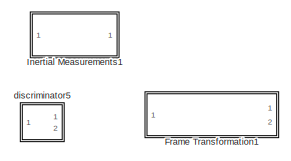
[diagram: root canvas - part 1/6, top right region]
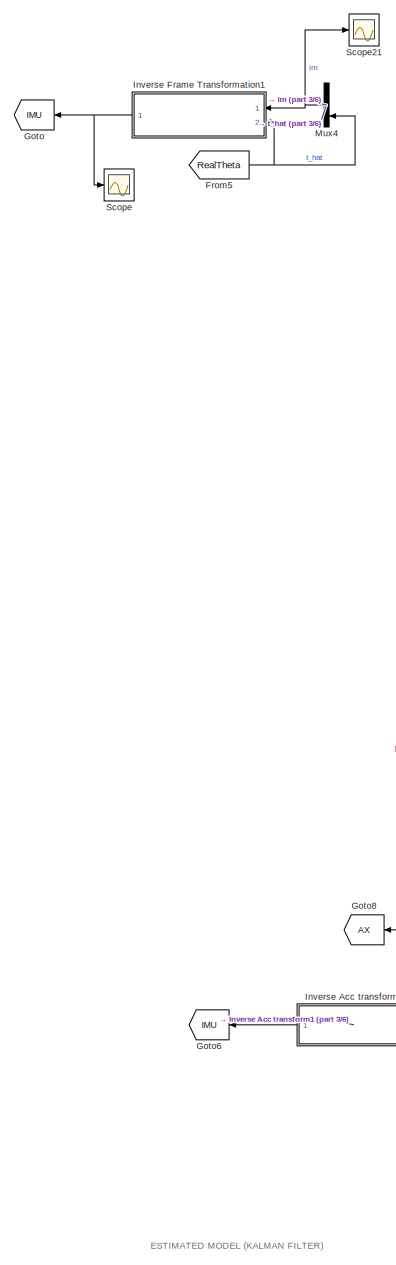
[diagram: root canvas - part 2/6, left side, full height]
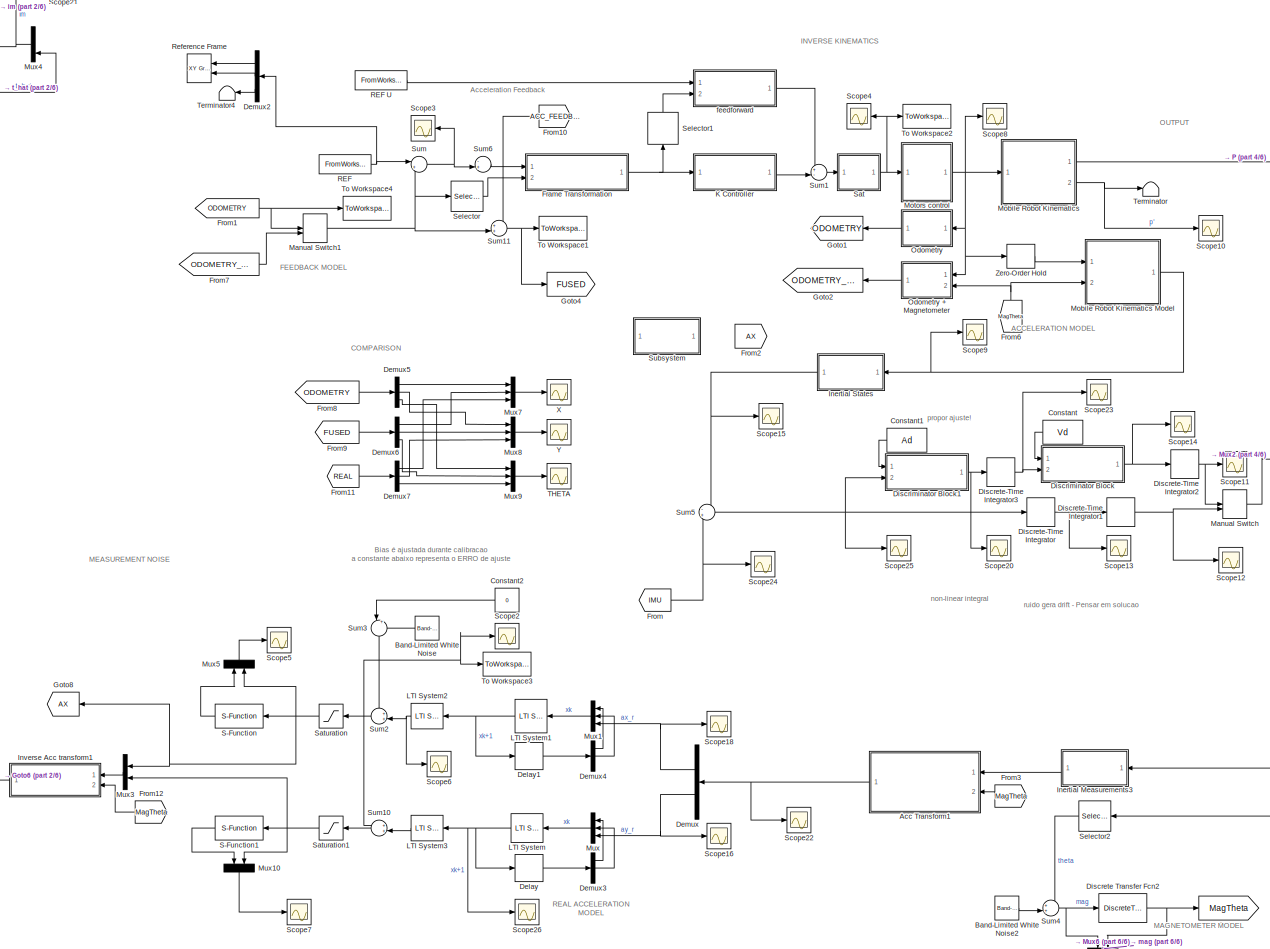
[diagram: root canvas - part 3/6, center side, full height]
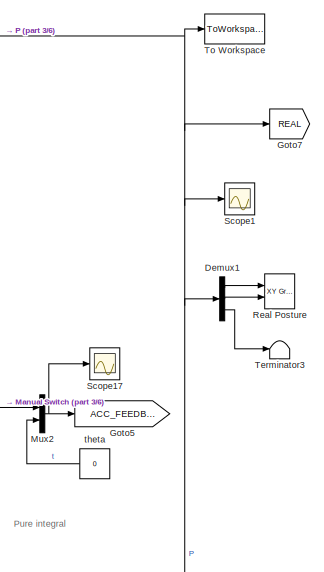
[diagram: root canvas - part 4/6, middle right region]
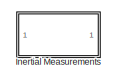
[diagram: root canvas - part 5/6, bottom right region]
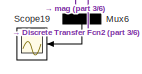
[diagram: root canvas - part 6/6, bottom right region]
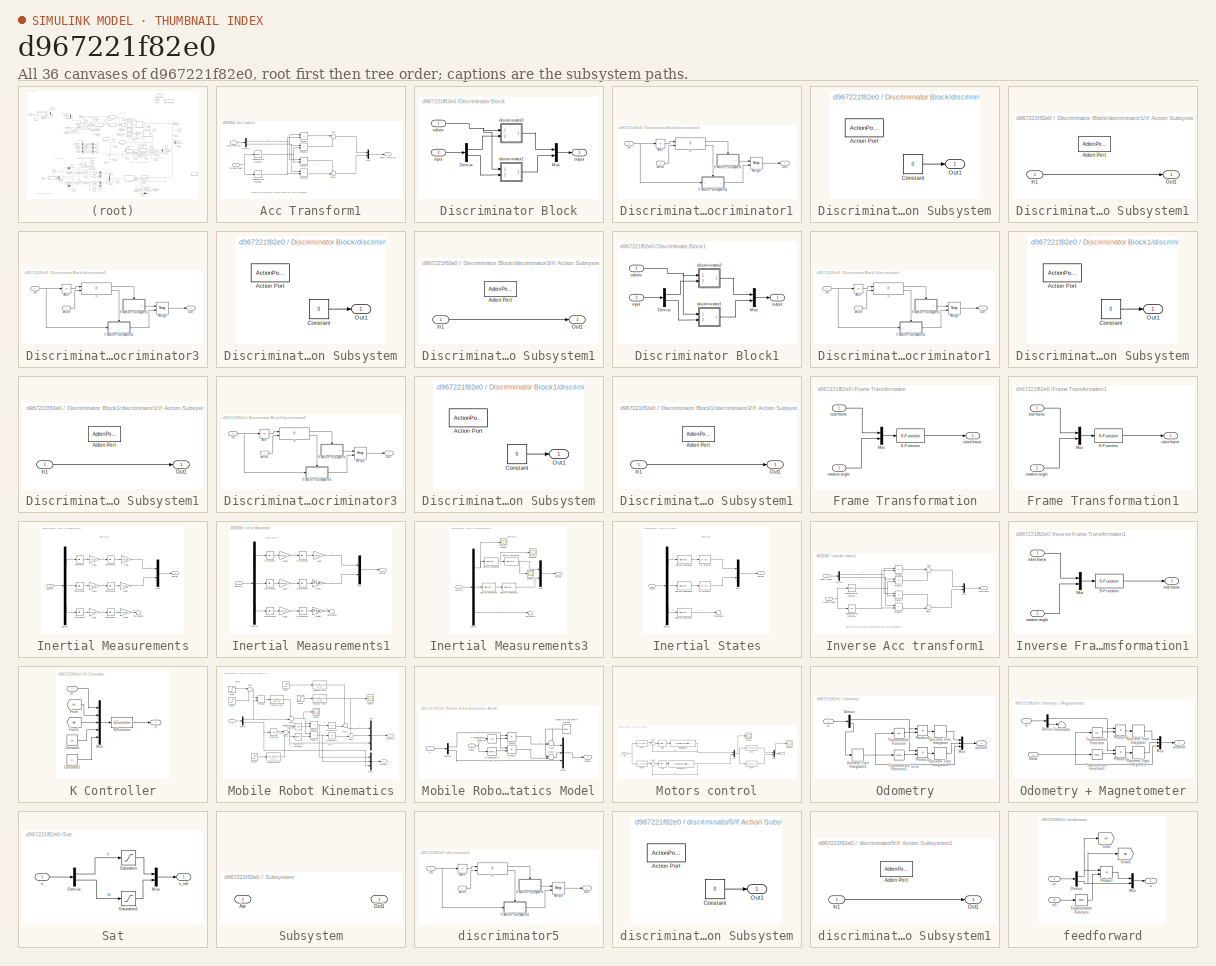
[diagram: thumbnail index - all 36 canvases of the model, root first then tree order]
MODEL slx_d967221f82e0
KIND model
CONFIG AbsTol = auto
CONFIG EnableMultiTasking = off
CONFIG FixedStep = Ts_compute
CONFIG MaxStep = auto
CONFIG MinStep = auto
CONFIG RelTol = 1e-3
CONFIG SampleTimeConstraint = Unconstrained
CONFIG Solver = VariableStepAuto
CONFIG SolverName = VariableStepAuto
CONFIG StartTime = 0.0
CONFIG StopTime = Tsim
BLOCK [SubSystem] Acc Transform1
  Ports = [2, 1]
  RequestExecContextInheritance = off
  Variant = off
BLOCK [Demux] Acc Transform1/Demux
  DisplayOption = bar
  Outputs = 2
  Ports = [1, 2]
BLOCK [Mux] Acc Transform1/Mux
  DisplayOption = bar
  Inputs = 2
  Ports = [2, 1]
BLOCK [Product] Acc Transform1/Product
  InputSameDT = off
  OutDataTypeStr = Inherit: Inherit via internal rule
  Ports = [2, 1]
  RndMeth = Floor
  SaturateOnIntegerOverflow = off
BLOCK [Product] Acc Transform1/Product1
  InputSameDT = off
  OutDataTypeStr = Inherit: Inherit via internal rule
  Ports = [2, 1]
  RndMeth = Floor
  SaturateOnIntegerOverflow = off
BLOCK [Product] Acc Transform1/Product2
  InputSameDT = off
  OutDataTypeStr = Inherit: Inherit via internal rule
  Ports = [2, 1]
  RndMeth = Floor
  SaturateOnIntegerOverflow = off
BLOCK [Product] Acc Transform1/Product3
  InputSameDT = off
  OutDataTypeStr = Inherit: Inherit via internal rule
  Ports = [2, 1]
  RndMeth = Floor
  SaturateOnIntegerOverflow = off
BLOCK [Sum] Acc Transform1/Sum
  IconShape = round
  InputSameDT = off
  Inputs = |+-
  OutDataTypeStr = Inherit: Inherit via internal rule
  Ports = [2, 1]
  SaturateOnIntegerOverflow = off
BLOCK [Sum] Acc Transform1/Sum1
  IconShape = round
  InputSameDT = off
  Inputs = ++|
  OutDataTypeStr = Inherit: Inherit via internal rule
  Ports = [2, 1]
  SaturateOnIntegerOverflow = off
BLOCK [Trigonometry] Acc Transform1/Trigonometric Function
  Ports = [1, 1]
BLOCK [Trigonometry] Acc Transform1/Trigonometric Function1
  Operator = cos
  Ports = [1, 1]
BLOCK [Inport] Acc Transform1/real frame acc
  IconDisplay = Port number
BLOCK [Outport] Acc Transform1/robot frame acc
  IconDisplay = Port number
BLOCK [Inport] Acc Transform1/rotation angle
  IconDisplay = Port number
  Port = 2
BLOCK [Reference] Band-Limited White Noise  REF=simulink/Sources/Band-Limited
White Noise
  Ports = [0, 1]
  SourceBlock = simulink/Sources/Band-Limited\nWhite Noise
  SourceProductBaseCode = SL
  SourceProductName = Simulink
  SourceType = Band-Limited White Noise.
BLOCK [Reference] Band-Limited White Noise2  REF=simulink/Sources/Band-Limited
White Noise
  Ports = [0, 1]
  SourceBlock = simulink/Sources/Band-Limited\nWhite Noise
  SourceProductBaseCode = SL
  SourceProductName = Simulink
  SourceType = Band-Limited White Noise.
BLOCK [Constant] Constant
  Value = Vd
BLOCK [Constant] Constant1
  Value = Ad
BLOCK [Constant] Constant2
  Value = 0
BLOCK [Delay] Delay
  DelayLength = 1
  InputPortMap = u0
  Ports = [1, 1]
BLOCK [Delay] Delay1
  DelayLength = 1
  InputPortMap = u0
  Ports = [1, 1]
BLOCK [Demux] Demux
  DisplayOption = bar
  Outputs = 2
  Ports = [1, 2]
BLOCK [Demux] Demux1
  DisplayOption = bar
  Outputs = 3
  Ports = [1, 3]
BLOCK [Demux] Demux2
  DisplayOption = bar
  Outputs = 3
  Ports = [1, 3]
BLOCK [Demux] Demux3
  DisplayOption = bar
  Outputs = 3
  Ports = [1, 3]
BLOCK [Demux] Demux4
  DisplayOption = bar
  Outputs = 3
  Ports = [1, 3]
BLOCK [Demux] Demux5
  DisplayOption = bar
  Outputs = 3
  Ports = [1, 3]
BLOCK [Demux] Demux6
  DisplayOption = bar
  Outputs = 3
  Ports = [1, 3]
BLOCK [Demux] Demux7
  DisplayOption = bar
  Outputs = 3
  Ports = [1, 3]
BLOCK [DiscreteTransferFcn] Discrete Transfer Fcn2
  Denominator = F_M.den{1}
  InputPortMap = u0
  Numerator = F_M.num{1}
  Ports = [1, 1]
  SampleTime = Ts_sensor
BLOCK [DiscreteIntegrator] Discrete-Time Integrator
  ICPrevOutput = DiscIntNeverNeededParam
  ICPrevScaledInput = DiscIntNeverNeededParam
  InitialConditionSetting = State (most efficient)
  Ports = [1, 1]
  SampleTime = Ts_sensor
BLOCK [DiscreteIntegrator] Discrete-Time Integrator1
  ICPrevOutput = DiscIntNeverNeededParam
  ICPrevScaledInput = DiscIntNeverNeededParam
  InitialConditionSetting = State (most efficient)
  Ports = [1, 1]
  SampleTime = Ts_sensor
BLOCK [DiscreteIntegrator] Discrete-Time Integrator2
  ICPrevOutput = DiscIntNeverNeededParam
  ICPrevScaledInput = DiscIntNeverNeededParam
  InitialConditionSetting = State (most efficient)
  Ports = [1, 1]
  SampleTime = Ts_sensor
BLOCK [DiscreteIntegrator] Discrete-Time Integrator3
  ICPrevOutput = DiscIntNeverNeededParam
  ICPrevScaledInput = DiscIntNeverNeededParam
  InitialConditionSetting = State (most efficient)
  Ports = [1, 1]
  SampleTime = Ts_sensor
BLOCK [SubSystem] Discriminator Block
  Ports = [2, 1]
  RequestExecContextInheritance = off
  Variant = off
BLOCK [Demux] Discriminator Block/Demux
  DisplayOption = bar
  Outputs = 2
  Ports = [1, 2]
BLOCK [Mux] Discriminator Block/Mux
  DisplayOption = bar
  Inputs = 2
  Ports = [2, 1]
BLOCK [SubSystem] Discriminator Block/discriminator1
  Ports = [2, 1]
  RequestExecContextInheritance = off
  Variant = off
BLOCK [Abs] Discriminator Block/discriminator1/Abs
  SaturateOnIntegerOverflow = off
BLOCK [Inport] Discriminator Block/discriminator1/IN
  IconDisplay = Port number
  Port = 2
BLOCK [If] Discriminator Block/discriminator1/If
  IfExpression = u1 < u2
  NumInputs = 2
  Ports = [2, 2]
BLOCK [SubSystem] Discriminator Block/discriminator1/If Action Subsystem
  Ports = [0, 1, 0, 0, 0, 0, 0, 1]
  RequestExecContextInheritance = off
  TreatAsAtomicUnit = on
  Variant = off
BLOCK [ActionPort] Discriminator Block/discriminator1/If Action Subsystem/Action Port
  ActionType = then
BLOCK [Constant] Discriminator Block/discriminator1/If Action Subsystem/Constant
  Value = 0
BLOCK [Outport] Discriminator Block/discriminator1/If Action Subsystem/Out1
  IconDisplay = Port number
BLOCK [SubSystem] Discriminator Block/discriminator1/If Action Subsystem1
  Ports = [1, 1, 0, 0, 0, 0, 0, 1]
  RequestExecContextInheritance = off
  TreatAsAtomicUnit = on
  Variant = off
BLOCK [ActionPort] Discriminator Block/discriminator1/If Action Subsystem1/Action Port
  ActionType = else
BLOCK [Inport] Discriminator Block/discriminator1/If Action Subsystem1/In1
  IconDisplay = Port number
BLOCK [Outport] Discriminator Block/discriminator1/If Action Subsystem1/Out1
  IconDisplay = Port number
BLOCK [Merge] Discriminator Block/discriminator1/Merge
  Ports = [2, 1]
BLOCK [Outport] Discriminator Block/discriminator1/OUT
  IconDisplay = Port number
BLOCK [Inport] Discriminator Block/discriminator1/value
  IconDisplay = Port number
BLOCK [SubSystem] Discriminator Block/discriminator3
  Ports = [2, 1]
  RequestExecContextInheritance = off
  Variant = off
BLOCK [Abs] Discriminator Block/discriminator3/Abs
  SaturateOnIntegerOverflow = off
BLOCK [Inport] Discriminator Block/discriminator3/IN
  IconDisplay = Port number
  Port = 2
BLOCK [If] Discriminator Block/discriminator3/If
  IfExpression = u1 < u2
  NumInputs = 2
  Ports = [2, 2]
BLOCK [SubSystem] Discriminator Block/discriminator3/If Action Subsystem
  Ports = [0, 1, 0, 0, 0, 0, 0, 1]
  RequestExecContextInheritance = off
  TreatAsAtomicUnit = on
  Variant = off
BLOCK [ActionPort] Discriminator Block/discriminator3/If Action Subsystem/Action Port
  ActionType = then
BLOCK [Constant] Discriminator Block/discriminator3/If Action Subsystem/Constant
  Value = 0
BLOCK [Outport] Discriminator Block/discriminator3/If Action Subsystem/Out1
  IconDisplay = Port number
BLOCK [SubSystem] Discriminator Block/discriminator3/If Action Subsystem1
  Ports = [1, 1, 0, 0, 0, 0, 0, 1]
  RequestExecContextInheritance = off
  TreatAsAtomicUnit = on
  Variant = off
BLOCK [ActionPort] Discriminator Block/discriminator3/If Action Subsystem1/Action Port
  ActionType = else
BLOCK [Inport] Discriminator Block/discriminator3/If Action Subsystem1/In1
  IconDisplay = Port number
BLOCK [Outport] Discriminator Block/discriminator3/If Action Subsystem1/Out1
  IconDisplay = Port number
BLOCK [Merge] Discriminator Block/discriminator3/Merge
  Ports = [2, 1]
BLOCK [Outport] Discriminator Block/discriminator3/OUT
  IconDisplay = Port number
BLOCK [Inport] Discriminator Block/discriminator3/value
  IconDisplay = Port number
BLOCK [Inport] Discriminator Block/input
  IconDisplay = Port number
  Port = 2
BLOCK [Outport] Discriminator Block/output
  IconDisplay = Port number
BLOCK [Inport] Discriminator Block/values
  IconDisplay = Port number
BLOCK [SubSystem] Discriminator Block1
  Ports = [2, 1]
  RequestExecContextInheritance = off
  Variant = off
BLOCK [Demux] Discriminator Block1/Demux
  DisplayOption = bar
  Outputs = 2
  Ports = [1, 2]
BLOCK [Mux] Discriminator Block1/Mux
  DisplayOption = bar
  Inputs = 2
  Ports = [2, 1]
BLOCK [SubSystem] Discriminator Block1/discriminator1
  Ports = [2, 1]
  RequestExecContextInheritance = off
  Variant = off
BLOCK [Abs] Discriminator Block1/discriminator1/Abs
  SaturateOnIntegerOverflow = off
  ZeroCross = off
BLOCK [Inport] Discriminator Block1/discriminator1/IN
  IconDisplay = Port number
  Port = 2
BLOCK [If] Discriminator Block1/discriminator1/If
  IfExpression = u1 < u2
  NumInputs = 2
  Ports = [2, 2]
BLOCK [SubSystem] Discriminator Block1/discriminator1/If Action Subsystem
  Ports = [0, 1, 0, 0, 0, 0, 0, 1]
  RequestExecContextInheritance = off
  TreatAsAtomicUnit = on
  Variant = off
BLOCK [ActionPort] Discriminator Block1/discriminator1/If Action Subsystem/Action Port
  ActionType = then
BLOCK [Constant] Discriminator Block1/discriminator1/If Action Subsystem/Constant
  Value = 0
BLOCK [Outport] Discriminator Block1/discriminator1/If Action Subsystem/Out1
  IconDisplay = Port number
BLOCK [SubSystem] Discriminator Block1/discriminator1/If Action Subsystem1
  Ports = [1, 1, 0, 0, 0, 0, 0, 1]
  RequestExecContextInheritance = off
  TreatAsAtomicUnit = on
  Variant = off
BLOCK [ActionPort] Discriminator Block1/discriminator1/If Action Subsystem1/Action Port
  ActionType = else
BLOCK [Inport] Discriminator Block1/discriminator1/If Action Subsystem1/In1
  IconDisplay = Port number
BLOCK [Outport] Discriminator Block1/discriminator1/If Action Subsystem1/Out1
  IconDisplay = Port number
BLOCK [Merge] Discriminator Block1/discriminator1/Merge
  Ports = [2, 1]
BLOCK [Outport] Discriminator Block1/discriminator1/OUT
  IconDisplay = Port number
BLOCK [Inport] Discriminator Block1/discriminator1/value
  IconDisplay = Port number
BLOCK [SubSystem] Discriminator Block1/discriminator3
  Ports = [2, 1]
  RequestExecContextInheritance = off
  Variant = off
BLOCK [Abs] Discriminator Block1/discriminator3/Abs
  SaturateOnIntegerOverflow = off
  ZeroCross = off
BLOCK [Inport] Discriminator Block1/discriminator3/IN
  IconDisplay = Port number
  Port = 2
BLOCK [If] Discriminator Block1/discriminator3/If
  IfExpression = u1 < u2
  NumInputs = 2
  Ports = [2, 2]
BLOCK [SubSystem] Discriminator Block1/discriminator3/If Action Subsystem
  Ports = [0, 1, 0, 0, 0, 0, 0, 1]
  RequestExecContextInheritance = off
  TreatAsAtomicUnit = on
  Variant = off
BLOCK [ActionPort] Discriminator Block1/discriminator3/If Action Subsystem/Action Port
  ActionType = then
BLOCK [Constant] Discriminator Block1/discriminator3/If Action Subsystem/Constant
  Value = 0
BLOCK [Outport] Discriminator Block1/discriminator3/If Action Subsystem/Out1
  IconDisplay = Port number
BLOCK [SubSystem] Discriminator Block1/discriminator3/If Action Subsystem1
  Ports = [1, 1, 0, 0, 0, 0, 0, 1]
  RequestExecContextInheritance = off
  TreatAsAtomicUnit = on
  Variant = off
BLOCK [ActionPort] Discriminator Block1/discriminator3/If Action Subsystem1/Action Port
  ActionType = else
BLOCK [Inport] Discriminator Block1/discriminator3/If Action Subsystem1/In1
  IconDisplay = Port number
BLOCK [Outport] Discriminator Block1/discriminator3/If Action Subsystem1/Out1
  IconDisplay = Port number
BLOCK [Merge] Discriminator Block1/discriminator3/Merge
  Ports = [2, 1]
BLOCK [Outport] Discriminator Block1/discriminator3/OUT
  IconDisplay = Port number
BLOCK [Inport] Discriminator Block1/discriminator3/value
  IconDisplay = Port number
BLOCK [Inport] Discriminator Block1/input
  IconDisplay = Port number
  Port = 2
BLOCK [Outport] Discriminator Block1/output
  IconDisplay = Port number
BLOCK [Inport] Discriminator Block1/values
  IconDisplay = Port number
BLOCK [SubSystem] Frame Transformation
  Ports = [2, 1]
  RequestExecContextInheritance = off
  Variant = off
BLOCK [Mux] Frame Transformation/Mux
  DisplayOption = bar
  Inputs = 2
  Ports = [2, 1]
BLOCK [S-Function] Frame Transformation/S-Function
  EnableBusSupport = off
  FunctionName = Real2Robot
  Parameters = Ts
  Ports = [1, 1]
  SFcnIsStateOwnerBlock = off
  SFunctionDeploymentMode = off
BLOCK [Inport] Frame Transformation/real frame
  IconDisplay = Port number
BLOCK [Outport] Frame Transformation/robot frame
  IconDisplay = Port number
BLOCK [Inport] Frame Transformation/rotation angle
  IconDisplay = Port number
  Port = 2
BLOCK [SubSystem] Frame Transformation1
  Commented = on
  Ports = [2, 1]
  RequestExecContextInheritance = off
  Variant = off
BLOCK [Mux] Frame Transformation1/Mux
  DisplayOption = bar
  Inputs = 2
  Ports = [2, 1]
BLOCK [S-Function] Frame Transformation1/S-Function
  EnableBusSupport = off
  FunctionName = Real2Robot
  Parameters = Ts_compute
  Ports = [1, 1]
  SFcnIsStateOwnerBlock = off
  SFunctionDeploymentMode = off
BLOCK [Inport] Frame Transformation1/real frame
  IconDisplay = Port number
BLOCK [Outport] Frame Transformation1/robot frame
  IconDisplay = Port number
BLOCK [Inport] Frame Transformation1/rotation angle
  IconDisplay = Port number
  Port = 2
BLOCK [From] From
  GotoTag = IMU
BLOCK [From] From1
  GotoTag = ODOMETRY
BLOCK [From] From10
  GotoTag = ACC_FEEDBACK
BLOCK [From] From11
  GotoTag = REAL
BLOCK [From] From12
  GotoTag = MagTheta
BLOCK [From] From2
  Commented = on
  GotoTag = AX
BLOCK [From] From3
  GotoTag = MagTheta
BLOCK [From] From5
  Commented = on
  GotoTag = RealTheta
BLOCK [From] From6
  GotoTag = MagTheta
BLOCK [From] From7
  GotoTag = ODOMETRY_MAG
BLOCK [From] From8
  GotoTag = ODOMETRY
BLOCK [From] From9
  GotoTag = FUSED
BLOCK [Goto] Goto
  Commented = on
  GotoTag = IMU
BLOCK [Goto] Goto1
  GotoTag = ODOMETRY
BLOCK [Goto] Goto2
  GotoTag = ODOMETRY_MAG
BLOCK [Goto] Goto3
  GotoTag = MagTheta
BLOCK [Goto] Goto4
  GotoTag = FUSED
BLOCK [Goto] Goto5
  GotoTag = ACC_FEEDBACK
BLOCK [Goto] Goto6
  GotoTag = IMU
BLOCK [Goto] Goto7
  GotoTag = REAL
BLOCK [Goto] Goto8
  GotoTag = AX
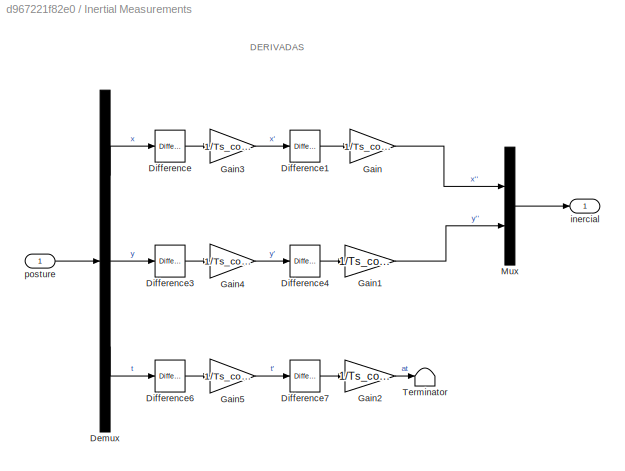
BLOCK [SubSystem] Inertial Measurements
  Commented = on
  Ports = [1, 1]
  RequestExecContextInheritance = off
  Variant = off
BLOCK [Demux] Inertial Measurements/Demux
  DisplayOption = bar
  Outputs = 3
  Ports = [1, 3]
BLOCK [Reference] Inertial Measurements/Difference  REF=simulink/Discrete/Difference
  Ports = [1, 1]
  SourceBlock = simulink/Discrete/Difference
  SourceProductBaseCode = SL
  SourceProductName = Simulink
  SourceType = Difference
BLOCK [Reference] Inertial Measurements/Difference1  REF=simulink/Discrete/Difference
  Ports = [1, 1]
  SourceBlock = simulink/Discrete/Difference
  SourceProductBaseCode = SL
  SourceProductName = Simulink
  SourceType = Difference
BLOCK [Reference] Inertial Measurements/Difference3  REF=simulink/Discrete/Difference
  Ports = [1, 1]
  SourceBlock = simulink/Discrete/Difference
  SourceProductBaseCode = SL
  SourceProductName = Simulink
  SourceType = Difference
BLOCK [Reference] Inertial Measurements/Difference4  REF=simulink/Discrete/Difference
  Ports = [1, 1]
  SourceBlock = simulink/Discrete/Difference
  SourceProductBaseCode = SL
  SourceProductName = Simulink
  SourceType = Difference
BLOCK [Reference] Inertial Measurements/Difference6  REF=simulink/Discrete/Difference
  Ports = [1, 1]
  SourceBlock = simulink/Discrete/Difference
  SourceProductBaseCode = SL
  SourceProductName = Simulink
  SourceType = Difference
BLOCK [Reference] Inertial Measurements/Difference7  REF=simulink/Discrete/Difference
  Ports = [1, 1]
  SourceBlock = simulink/Discrete/Difference
  SourceProductBaseCode = SL
  SourceProductName = Simulink
  SourceType = Difference
BLOCK [Gain] Inertial Measurements/Gain
  Gain = 1/Ts_compute
  OutDataTypeStr = Inherit: Inherit via internal rule
  ParamDataTypeStr = Inherit: Inherit via internal rule
  SaturateOnIntegerOverflow = off
BLOCK [Gain] Inertial Measurements/Gain1
  Gain = 1/Ts_compute
  OutDataTypeStr = Inherit: Inherit via internal rule
  ParamDataTypeStr = Inherit: Inherit via internal rule
  SaturateOnIntegerOverflow = off
BLOCK [Gain] Inertial Measurements/Gain2
  Gain = 1/Ts_compute
  OutDataTypeStr = Inherit: Inherit via internal rule
  ParamDataTypeStr = Inherit: Inherit via internal rule
  SaturateOnIntegerOverflow = off
BLOCK [Gain] Inertial Measurements/Gain3
  Gain = 1/Ts_compute
  OutDataTypeStr = Inherit: Inherit via internal rule
  ParamDataTypeStr = Inherit: Inherit via internal rule
  SaturateOnIntegerOverflow = off
BLOCK [Gain] Inertial Measurements/Gain4
  Gain = 1/Ts_compute
  OutDataTypeStr = Inherit: Inherit via internal rule
  ParamDataTypeStr = Inherit: Inherit via internal rule
  SaturateOnIntegerOverflow = off
BLOCK [Gain] Inertial Measurements/Gain5
  Gain = 1/Ts_compute
  OutDataTypeStr = Inherit: Inherit via internal rule
  ParamDataTypeStr = Inherit: Inherit via internal rule
  SaturateOnIntegerOverflow = off
BLOCK [Mux] Inertial Measurements/Mux
  DisplayOption = bar
  Inputs = 2
  Ports = [2, 1]
BLOCK [Terminator] Inertial Measurements/Terminator
BLOCK [Outport] Inertial Measurements/inercial
  IconDisplay = Port number
BLOCK [Inport] Inertial Measurements/posture
  IconDisplay = Port number
BLOCK [SubSystem] Inertial Measurements1
  Commented = on
  Ports = [1, 1]
  RequestExecContextInheritance = off
  Variant = off
BLOCK [Demux] Inertial Measurements1/Demux
  DisplayOption = bar
  Outputs = 3
  Ports = [1, 3]
BLOCK [Reference] Inertial Measurements1/Difference  REF=simulink/Discrete/Difference
  Ports = [1, 1]
  SourceBlock = simulink/Discrete/Difference
  SourceProductBaseCode = SL
  SourceProductName = Simulink
  SourceType = Difference
BLOCK [Reference] Inertial Measurements1/Difference1  REF=simulink/Discrete/Difference
  Ports = [1, 1]
  SourceBlock = simulink/Discrete/Difference
  SourceProductBaseCode = SL
  SourceProductName = Simulink
  SourceType = Difference
BLOCK [Reference] Inertial Measurements1/Difference3  REF=simulink/Discrete/Difference
  Ports = [1, 1]
  SourceBlock = simulink/Discrete/Difference
  SourceProductBaseCode = SL
  SourceProductName = Simulink
  SourceType = Difference
BLOCK [Reference] Inertial Measurements1/Difference4  REF=simulink/Discrete/Difference
  Ports = [1, 1]
  SourceBlock = simulink/Discrete/Difference
  SourceProductBaseCode = SL
  SourceProductName = Simulink
  SourceType = Difference
BLOCK [Reference] Inertial Measurements1/Difference6  REF=simulink/Discrete/Difference
  Ports = [1, 1]
  SourceBlock = simulink/Discrete/Difference
  SourceProductBaseCode = SL
  SourceProductName = Simulink
  SourceType = Difference
BLOCK [Reference] Inertial Measurements1/Difference7  REF=simulink/Discrete/Difference
  Ports = [1, 1]
  SourceBlock = simulink/Discrete/Difference
  SourceProductBaseCode = SL
  SourceProductName = Simulink
  SourceType = Difference
BLOCK [Gain] Inertial Measurements1/Gain
  Gain = 1/Ts_compute
  OutDataTypeStr = Inherit: Inherit via internal rule
  ParamDataTypeStr = Inherit: Inherit via internal rule
  SaturateOnIntegerOverflow = off
BLOCK [Gain] Inertial Measurements1/Gain1
  Gain = 1/Ts_compute
  OutDataTypeStr = Inherit: Inherit via internal rule
  ParamDataTypeStr = Inherit: Inherit via internal rule
  SaturateOnIntegerOverflow = off
BLOCK [Gain] Inertial Measurements1/Gain2
  Gain = 1/Ts_compute
  OutDataTypeStr = Inherit: Inherit via internal rule
  ParamDataTypeStr = Inherit: Inherit via internal rule
  SaturateOnIntegerOverflow = off
BLOCK [Gain] Inertial Measurements1/Gain3
  Gain = 1/Ts_compute
  OutDataTypeStr = Inherit: Inherit via internal rule
  ParamDataTypeStr = Inherit: Inherit via internal rule
  SaturateOnIntegerOverflow = off
BLOCK [Gain] Inertial Measurements1/Gain4
  Gain = 1/Ts_compute
  OutDataTypeStr = Inherit: Inherit via internal rule
  ParamDataTypeStr = Inherit: Inherit via internal rule
  SaturateOnIntegerOverflow = off
BLOCK [Gain] Inertial Measurements1/Gain5
  Gain = 1/Ts_compute
  OutDataTypeStr = Inherit: Inherit via internal rule
  ParamDataTypeStr = Inherit: Inherit via internal rule
  SaturateOnIntegerOverflow = off
BLOCK [Mux] Inertial Measurements1/Mux
  DisplayOption = bar
  Inputs = 2
  Ports = [2, 1]
BLOCK [Terminator] Inertial Measurements1/Terminator
BLOCK [Outport] Inertial Measurements1/inercial
  IconDisplay = Port number
BLOCK [Inport] Inertial Measurements1/posture
  IconDisplay = Port number
BLOCK [SubSystem] Inertial Measurements3
  Ports = [1, 1]
  RequestExecContextInheritance = off
  Variant = off
BLOCK [Demux] Inertial Measurements3/Demux
  DisplayOption = bar
  Outputs = 3
  Ports = [1, 3]
BLOCK [Reference] Inertial Measurements3/Discrete Derivative  REF=simulink/Discrete/Discrete Derivative
  Ports = [1, 1]
  SourceBlock = simulink/Discrete/Discrete Derivative
  SourceProductBaseCode = SL
  SourceProductName = Simulink
  SourceType = Discrete Derivative
BLOCK [Reference] Inertial Measurements3/Discrete Derivative1  REF=simulink/Discrete/Discrete Derivative
  Ports = [1, 1]
  SourceBlock = simulink/Discrete/Discrete Derivative
  SourceProductBaseCode = SL
  SourceProductName = Simulink
  SourceType = Discrete Derivative
BLOCK [Reference] Inertial Measurements3/Discrete Derivative2  REF=simulink/Discrete/Discrete Derivative
  Ports = [1, 1]
  SourceBlock = simulink/Discrete/Discrete Derivative
  SourceProductBaseCode = SL
  SourceProductName = Simulink
  SourceType = Discrete Derivative
BLOCK [Reference] Inertial Measurements3/Discrete Derivative3  REF=simulink/Discrete/Discrete Derivative
  Ports = [1, 1]
  SourceBlock = simulink/Discrete/Discrete Derivative
  SourceProductBaseCode = SL
  SourceProductName = Simulink
  SourceType = Discrete Derivative
BLOCK [Mux] Inertial Measurements3/Mux
  DisplayOption = bar
  Inputs = 2
  Ports = [2, 1]
BLOCK [Scope] Inertial Measurements3/Scope1
  NumInputPorts = 1
  Ports = [1]
  ScopeSpecificationString = Simulink.scopes.TimeScopeBlockCfg('CurrentConfiguration', extmgr.ConfigurationSet(extmgr.Configuration('Core','General UI',true),extmgr.Configuration('Core','Source UI',true),extmgr.Configuration('Sources','WiredSimulink',true,'DataLoggingVariableName','ScopeData3'),extmgr.Configuration('Visuals','Time Domain',true,'SerializedDisplays',{struct('MinYLimReal','-1.69216','MaxYLimReal','6.79619','YLab...<+1464ch>
BLOCK [Scope] Inertial Measurements3/Scope18
  NumInputPorts = 1
  Ports = [1]
  ScopeSpecificationString = Simulink.scopes.TimeScopeBlockCfg('CurrentConfiguration', extmgr.ConfigurationSet(extmgr.Configuration('Core','General UI',true),extmgr.Configuration('Core','Source UI',true),extmgr.Configuration('Sources','WiredSimulink',true,'DataLoggingVariableName','ScopeData2'),extmgr.Configuration('Visuals','Time Domain',true,'SerializedDisplays',{struct('MinYLimReal','-0.08476','MaxYLimReal','0.5169','YLabe...<+1445ch>
BLOCK [Scope] Inertial Measurements3/Scope2
  NumInputPorts = 1
  Ports = [1]
  ScopeSpecificationString = Simulink.scopes.TimeScopeBlockCfg('CurrentConfiguration', extmgr.ConfigurationSet(extmgr.Configuration('Core','General UI',true),extmgr.Configuration('Core','Source UI',true),extmgr.Configuration('Sources','WiredSimulink',true,'DataLoggingVariableName','ScopeData4'),extmgr.Configuration('Visuals','Time Domain',true,'SerializedDisplays',{struct('MinYLimReal','-0.82719','MaxYLimReal','7.44469','YLab...<+1431ch>
BLOCK [Terminator] Inertial Measurements3/Terminator
BLOCK [Outport] Inertial Measurements3/inercial
  IconDisplay = Port number
BLOCK [Inport] Inertial Measurements3/posture
  IconDisplay = Port number
BLOCK [SubSystem] Inertial States
  Ports = [1, 1]
  RequestExecContextInheritance = off
  Variant = off
BLOCK [Demux] Inertial States/Demux
  DisplayOption = bar
  Outputs = 3
  Ports = [1, 3]
BLOCK [Reference] Inertial States/Discrete Derivative  REF=simulink/Discrete/Discrete Derivative
  Ports = [1, 1]
  SourceBlock = simulink/Discrete/Discrete Derivative
  SourceProductBaseCode = SL
  SourceProductName = Simulink
  SourceType = Discrete Derivative
BLOCK [Reference] Inertial States/Discrete Derivative1  REF=simulink/Discrete/Discrete Derivative
  Ports = [1, 1]
  SourceBlock = simulink/Discrete/Discrete Derivative
  SourceProductBaseCode = SL
  SourceProductName = Simulink
  SourceType = Discrete Derivative
BLOCK [Reference] Inertial States/Discrete Derivative2  REF=simulink/Discrete/Discrete Derivative
  Ports = [1, 1]
  SourceBlock = simulink/Discrete/Discrete Derivative
  SourceProductBaseCode = SL
  SourceProductName = Simulink
  SourceType = Discrete Derivative
BLOCK [Reference] Inertial States/LTI System  REF=cstblocks/LTI System
  Ports = [1, 1]
  SourceBlock = cstblocks/LTI System
  SourceProductBaseCode = CT
  SourceProductName = Control System Toolbox
  SourceType = LTI Block
BLOCK [Reference] Inertial States/LTI System1  REF=cstblocks/LTI System
  Ports = [1, 1]
  SourceBlock = cstblocks/LTI System
  SourceProductBaseCode = CT
  SourceProductName = Control System Toolbox
  SourceType = LTI Block
BLOCK [Mux] Inertial States/Mux
  DisplayOption = bar
  Inputs = 2
  Ports = [2, 1]
BLOCK [Terminator] Inertial States/Terminator
BLOCK [Outport] Inertial States/inercial
  IconDisplay = Port number
BLOCK [Inport] Inertial States/states
  IconDisplay = Port number
BLOCK [SubSystem] Inverse Acc transform1
  Ports = [2, 1]
  RequestExecContextInheritance = off
  Variant = off
BLOCK [Demux] Inverse Acc transform1/Demux
  DisplayOption = bar
  Outputs = 2
  Ports = [1, 2]
BLOCK [Mux] Inverse Acc transform1/Mux
  DisplayOption = bar
  Inputs = 2
  Ports = [2, 1]
BLOCK [Product] Inverse Acc transform1/Product
  InputSameDT = off
  OutDataTypeStr = Inherit: Inherit via internal rule
  Ports = [2, 1]
  RndMeth = Floor
  SaturateOnIntegerOverflow = off
BLOCK [Product] Inverse Acc transform1/Product1
  InputSameDT = off
  OutDataTypeStr = Inherit: Inherit via internal rule
  Ports = [2, 1]
  RndMeth = Floor
  SaturateOnIntegerOverflow = off
BLOCK [Product] Inverse Acc transform1/Product2
  InputSameDT = off
  OutDataTypeStr = Inherit: Inherit via internal rule
  Ports = [2, 1]
  RndMeth = Floor
  SaturateOnIntegerOverflow = off
BLOCK [Product] Inverse Acc transform1/Product3
  InputSameDT = off
  OutDataTypeStr = Inherit: Inherit via internal rule
  Ports = [2, 1]
  RndMeth = Floor
  SaturateOnIntegerOverflow = off
BLOCK [Sum] Inverse Acc transform1/Sum
  IconShape = round
  InputSameDT = off
  Inputs = |++
  OutDataTypeStr = Inherit: Inherit via internal rule
  Ports = [2, 1]
  SaturateOnIntegerOverflow = off
BLOCK [Sum] Inverse Acc transform1/Sum1
  IconShape = round
  InputSameDT = off
  Inputs = -+|
  OutDataTypeStr = Inherit: Inherit via internal rule
  Ports = [2, 1]
  SaturateOnIntegerOverflow = off
BLOCK [Trigonometry] Inverse Acc transform1/Trigonometric Function
  Ports = [1, 1]
BLOCK [Trigonometry] Inverse Acc transform1/Trigonometric Function1
  Operator = cos
  Ports = [1, 1]
BLOCK [Outport] Inverse Acc transform1/real frame
  IconDisplay = Port number
BLOCK [Inport] Inverse Acc transform1/robot frame
  IconDisplay = Port number
BLOCK [Inport] Inverse Acc transform1/rotation angle
  IconDisplay = Port number
  Port = 2
BLOCK [SubSystem] Inverse Frame Transformation1
  Commented = on
  Ports = [2, 1]
  RequestExecContextInheritance = off
  Variant = off
BLOCK [Mux] Inverse Frame Transformation1/Mux
  DisplayOption = bar
  Inputs = 2
  Ports = [2, 1]
BLOCK [S-Function] Inverse Frame Transformation1/S-Function
  EnableBusSupport = off
  FunctionName = Robot2Real
  Parameters = Ts
  Ports = [1, 1]
  SFcnIsStateOwnerBlock = off
  SFunctionDeploymentMode = off
BLOCK [Outport] Inverse Frame Transformation1/real frame
  IconDisplay = Port number
BLOCK [Inport] Inverse Frame Transformation1/robot frame
  IconDisplay = Port number
BLOCK [Inport] Inverse Frame Transformation1/rotation angle
  IconDisplay = Port number
  Port = 2
BLOCK [SubSystem] K Controller
  Ports = [1, 1]
  RequestExecContextInheritance = off
  Variant = off
BLOCK [Constant] K Controller/Constant
  Value = ksi
BLOCK [Constant] K Controller/Constant1
  Value = g
BLOCK [From] K Controller/From
  GotoTag = vr
  TagVisibility = global
BLOCK [From] K Controller/From1
  GotoTag = wr
  TagVisibility = global
BLOCK [Mux] K Controller/Mux
  DisplayOption = bar
  Inputs = 5
  Ports = [5, 1]
BLOCK [S-Function] K Controller/S-Function
  EnableBusSupport = off
  FunctionName = ControllerK
  Parameters = Ts
  Ports = [1, 1]
  SFcnIsStateOwnerBlock = off
  SFunctionDeploymentMode = off
BLOCK [Inport] K Controller/er
  IconDisplay = Port number
BLOCK [Outport] K Controller/v
  IconDisplay = Port number
BLOCK [Reference] LTI System  REF=cstblocks/LTI System
  Ports = [1, 1]
  SourceBlock = cstblocks/LTI System
  SourceProductBaseCode = CT
  SourceProductName = Control System Toolbox
  SourceType = LTI Block
BLOCK [Reference] LTI System1  REF=cstblocks/LTI System
  Ports = [1, 1]
  SourceBlock = cstblocks/LTI System
  SourceProductBaseCode = CT
  SourceProductName = Control System Toolbox
  SourceType = LTI Block
BLOCK [Reference] LTI System2  REF=cstblocks/LTI System
  Ports = [1, 1]
  SourceBlock = cstblocks/LTI System
  SourceProductBaseCode = CT
  SourceProductName = Control System Toolbox
  SourceType = LTI Block
BLOCK [Reference] LTI System3  REF=cstblocks/LTI System
  Ports = [1, 1]
  SourceBlock = cstblocks/LTI System
  SourceProductBaseCode = CT
  SourceProductName = Control System Toolbox
  SourceType = LTI Block
BLOCK [ManualSwitch] Manual Switch
BLOCK [ManualSwitch] Manual Switch1
  CurrentSetting = 0
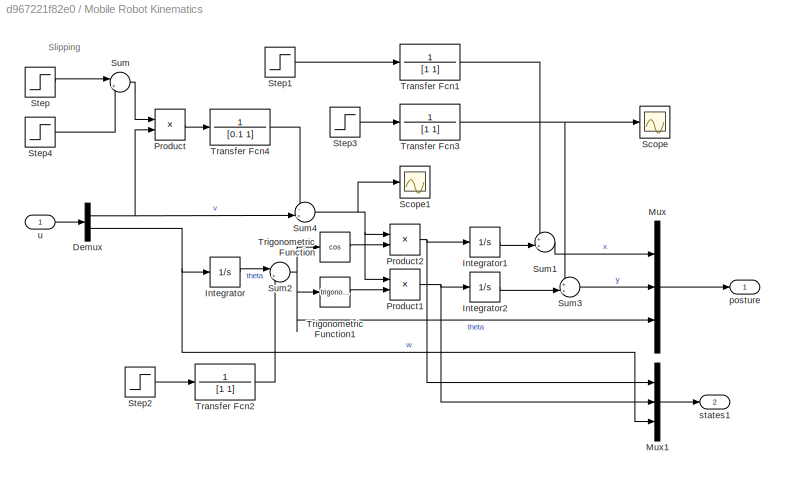
BLOCK [SubSystem] Mobile Robot Kinematics
  Ports = [1, 2]
  RequestExecContextInheritance = off
  Variant = off
BLOCK [SubSystem] Mobile Robot Kinematics Model
  Ports = [2, 1]
  RequestExecContextInheritance = off
  Variant = off
BLOCK [Reference] Mobile Robot Kinematics Model/Band-Limited White Noise1  REF=simulink/Sources/Band-Limited
White Noise
  Ports = [0, 1]
  SourceBlock = simulink/Sources/Band-Limited\nWhite Noise
  SourceProductBaseCode = SL
  SourceProductName = Simulink
  SourceType = Band-Limited White Noise.
BLOCK [Demux] Mobile Robot Kinematics Model/Demux
  DisplayOption = bar
  Outputs = 2
  Ports = [1, 2]
BLOCK [Mux] Mobile Robot Kinematics Model/Mux1
  DisplayOption = bar
  Inputs = 3
  Ports = [3, 1]
BLOCK [Product] Mobile Robot Kinematics Model/Product1
  InputSameDT = off
  OutDataTypeStr = Inherit: Inherit via internal rule
  Ports = [2, 1]
  RndMeth = Floor
  SaturateOnIntegerOverflow = off
BLOCK [Product] Mobile Robot Kinematics Model/Product2
  InputSameDT = off
  OutDataTypeStr = Inherit: Inherit via internal rule
  Ports = [2, 1]
  RndMeth = Floor
  SaturateOnIntegerOverflow = off
BLOCK [Sum] Mobile Robot Kinematics Model/Sum
  IconShape = round
  InputSameDT = off
  Inputs = ++|
  OutDataTypeStr = Inherit: Inherit via internal rule
  Ports = [2, 1]
  SaturateOnIntegerOverflow = off
BLOCK [Sum] Mobile Robot Kinematics Model/Sum1
  IconShape = round
  InputSameDT = off
  Inputs = ++|
  OutDataTypeStr = Inherit: Inherit via internal rule
  Ports = [2, 1]
  SaturateOnIntegerOverflow = off
BLOCK [Trigonometry] Mobile Robot Kinematics Model/Trigonometric Function
  Operator = cos
  Ports = [1, 1]
BLOCK [Trigonometry] Mobile Robot Kinematics Model/Trigonometric Function1
  Ports = [1, 1]
BLOCK [Outport] Mobile Robot Kinematics Model/states
  IconDisplay = Port number
BLOCK [Inport] Mobile Robot Kinematics Model/theta 
  IconDisplay = Port number
  Port = 2
BLOCK [Inport] Mobile Robot Kinematics Model/u
  IconDisplay = Port number
BLOCK [Demux] Mobile Robot Kinematics/Demux
  DisplayOption = bar
  Outputs = 2
  Ports = [1, 2]
BLOCK [Integrator] Mobile Robot Kinematics/Integrator
  Ports = [1, 1]
BLOCK [Integrator] Mobile Robot Kinematics/Integrator1
  Ports = [1, 1]
BLOCK [Integrator] Mobile Robot Kinematics/Integrator2
  Ports = [1, 1]
BLOCK [Mux] Mobile Robot Kinematics/Mux
  DisplayOption = bar
  Inputs = 3
  Ports = [3, 1]
BLOCK [Mux] Mobile Robot Kinematics/Mux1
  DisplayOption = bar
  Inputs = 3
  Ports = [3, 1]
BLOCK [Product] Mobile Robot Kinematics/Product
  InputSameDT = off
  OutDataTypeStr = Inherit: Inherit via internal rule
  Ports = [2, 1]
  RndMeth = Floor
  SaturateOnIntegerOverflow = off
BLOCK [Product] Mobile Robot Kinematics/Product1
  InputSameDT = off
  OutDataTypeStr = Inherit: Inherit via internal rule
  Ports = [2, 1]
  RndMeth = Floor
  SaturateOnIntegerOverflow = off
BLOCK [Product] Mobile Robot Kinematics/Product2
  InputSameDT = off
  OutDataTypeStr = Inherit: Inherit via internal rule
  Ports = [2, 1]
  RndMeth = Floor
  SaturateOnIntegerOverflow = off
BLOCK [Scope] Mobile Robot Kinematics/Scope
  NumInputPorts = 1
  Ports = [1]
  ScopeSpecificationString = Simulink.scopes.TimeScopeBlockCfg('CurrentConfiguration', extmgr.ConfigurationSet(extmgr.Configuration('Core','General UI',true),extmgr.Configuration('Core','Source UI',true),extmgr.Configuration('Sources','WiredSimulink',true,'DataLoggingVariableName','ScopeData5'),extmgr.Configuration('Visuals','Time Domain',true,'SerializedDisplays',{struct('MinYLimReal','-1.125','MaxYLimReal','0.125','YLabelRe...<+1379ch>
BLOCK [Scope] Mobile Robot Kinematics/Scope1
  NumInputPorts = 1
  Ports = [1]
  ScopeSpecificationString = Simulink.scopes.TimeScopeBlockCfg('CurrentConfiguration', extmgr.ConfigurationSet(extmgr.Configuration('Core','General UI',true),extmgr.Configuration('Core','Source UI',true),extmgr.Configuration('Sources','WiredSimulink',true,'DataLoggingVariableName','ScopeData4'),extmgr.Configuration('Visuals','Time Domain',true,'SerializedDisplays',{struct('MinYLimReal','-0.08626','MaxYLimReal','0.76805','YLab...<+1382ch>
BLOCK [Step] Mobile Robot Kinematics/Step
  SampleTime = 0
  Time = 25
BLOCK [Step] Mobile Robot Kinematics/Step1
  After = 0
  SampleTime = 0
  Time = 20
BLOCK [Step] Mobile Robot Kinematics/Step2
  After = 0
  SampleTime = 0
  Time = 10
BLOCK [Step] Mobile Robot Kinematics/Step3
  After = -1
  SampleTime = 0
  Time = 5
BLOCK [Step] Mobile Robot Kinematics/Step4
  After = -1
  SampleTime = 0
  Time = 27
BLOCK [Sum] Mobile Robot Kinematics/Sum
  IconShape = round
  InputSameDT = off
  Inputs = |++
  OutDataTypeStr = Inherit: Inherit via internal rule
  Ports = [2, 1]
  SaturateOnIntegerOverflow = off
BLOCK [Sum] Mobile Robot Kinematics/Sum1
  IconShape = round
  InputSameDT = off
  Inputs = ++|
  OutDataTypeStr = Inherit: Inherit via internal rule
  Ports = [2, 1]
  SaturateOnIntegerOverflow = off
BLOCK [Sum] Mobile Robot Kinematics/Sum2
  IconShape = round
  InputSameDT = off
  Inputs = |++
  OutDataTypeStr = Inherit: Inherit via internal rule
  Ports = [2, 1]
  SaturateOnIntegerOverflow = off
BLOCK [Sum] Mobile Robot Kinematics/Sum3
  IconShape = round
  InputSameDT = off
  Inputs = ++|
  OutDataTypeStr = Inherit: Inherit via internal rule
  Ports = [2, 1]
  SaturateOnIntegerOverflow = off
BLOCK [Sum] Mobile Robot Kinematics/Sum4
  IconShape = round
  InputSameDT = off
  Inputs = -+|
  OutDataTypeStr = Inherit: Inherit via internal rule
  Ports = [2, 1]
  SaturateOnIntegerOverflow = off
BLOCK [TransferFcn] Mobile Robot Kinematics/Transfer Fcn1
  Numerator = 1
BLOCK [TransferFcn] Mobile Robot Kinematics/Transfer Fcn2
  Numerator = 1
BLOCK [TransferFcn] Mobile Robot Kinematics/Transfer Fcn3
  Numerator = 1
BLOCK [TransferFcn] Mobile Robot Kinematics/Transfer Fcn4
  Commented = on
  Denominator = [0.1 1]
  Numerator = 1
BLOCK [Trigonometry] Mobile Robot Kinematics/Trigonometric Function
  Operator = cos
  Ports = [1, 1]
BLOCK [Trigonometry] Mobile Robot Kinematics/Trigonometric Function1
  Ports = [1, 1]
BLOCK [Outport] Mobile Robot Kinematics/posture
  IconDisplay = Port number
BLOCK [Outport] Mobile Robot Kinematics/states1
  IconDisplay = Port number
  Port = 2
BLOCK [Inport] Mobile Robot Kinematics/u
  IconDisplay = Port number
BLOCK [SubSystem] Motors control
  Ports = [1, 1]
  RequestExecContextInheritance = off
  Variant = off
BLOCK [Mux] Motors control/Mux
  DisplayOption = bar
  Inputs = 2
  Ports = [2, 1]
BLOCK [Mux] Motors control/Mux1
  DisplayOption = bar
  Inputs = 2
  Ports = [2, 1]
BLOCK [Reference] Motors control/PID 1  REF=simulink/Continuous/PID Controller
  Ports = [1, 1]
  SourceBlock = simulink/Continuous/PID Controller
  SourceProductBaseCode = SL
  SourceProductName = Simulink
  SourceType = PID 1dof
BLOCK [Reference] Motors control/PID 2  REF=simulink/Continuous/PID Controller
  Ports = [1, 1]
  SourceBlock = simulink/Continuous/PID Controller
  SourceProductBaseCode = SL
  SourceProductName = Simulink
  SourceType = PID 1dof
BLOCK [Reference] Motors control/Right Motor CL  REF=simulink_extras/Additional
Linear/Transfer Fcn
(with initial outputs)
  Ports = [1, 1]
  SourceBlock = simulink_extras/Additional\nLinear/Transfer Fcn\n(with initial outputs)
  SourceProductBaseCode = SL
  SourceProductName = Simulink
  SourceType = Transfer Function with Initial Outputs
BLOCK [Reference] Motors control/Right Motor CL1  REF=simulink_extras/Additional
Linear/Transfer Fcn
(with initial outputs)
  Ports = [1, 1]
  SourceBlock = simulink_extras/Additional\nLinear/Transfer Fcn\n(with initial outputs)
  SourceProductBaseCode = SL
  SourceProductName = Simulink
  SourceType = Transfer Function with Initial Outputs
BLOCK [Scope] Motors control/Scope
  NumInputPorts = 1
  Ports = [1]
  ScopeSpecificationString = Simulink.scopes.TimeScopeBlockCfg('CurrentConfiguration', extmgr.ConfigurationSet(extmgr.Configuration('Core','General UI',true),extmgr.Configuration('Core','Source UI',true),extmgr.Configuration('Sources','WiredSimulink',true,'DataLoggingVariableName','ScopeData5','DataLoggingSaveFormat','StructureWithTime','DataLoggingDecimation','1','DataLoggingDecimateData',true),extmgr.Configuration('Visuals'...<+1668ch>
BLOCK [Scope] Motors control/Scope1
  NumInputPorts = 1
  Ports = [1]
  ScopeSpecificationString = Simulink.scopes.TimeScopeBlockCfg('CurrentConfiguration', extmgr.ConfigurationSet(extmgr.Configuration('Core','General UI',true),extmgr.Configuration('Core','Source UI',true),extmgr.Configuration('Sources','WiredSimulink',true,'DataLoggingVariableName','ScopeData12','DataLoggingSaveFormat','StructureWithTime','DataLoggingDecimation','1','DataLoggingDecimateData',true),extmgr.Configuration('Visuals...<+1679ch>
BLOCK [Sum] Motors control/Sum
  IconShape = round
  InputSameDT = off
  Inputs = |+-
  OutDataTypeStr = Inherit: Inherit via internal rule
  Ports = [2, 1]
  SaturateOnIntegerOverflow = off
BLOCK [Sum] Motors control/Sum1
  IconShape = round
  InputSameDT = off
  Inputs = |+-
  OutDataTypeStr = Inherit: Inherit via internal rule
  Ports = [2, 1]
  SaturateOnIntegerOverflow = off
BLOCK [Outport] Motors control/u
  IconDisplay = Port number
BLOCK [Inport] Motors control/uin
  IconDisplay = Port number
BLOCK [Fcn] Motors control/vrl2v
  Expr = (1/2)*(u(1)+u(2))
BLOCK [Fcn] Motors control/vrl2w
  Expr = (1/b)*(u(1)-u(2))
BLOCK [Fcn] Motors control/vw2Vl
  Expr = u(1)-((u(2)*b)/2)
BLOCK [Fcn] Motors control/vw2Vr
  Expr = u(1) + ((u(2)*b)/2)
BLOCK [Mux] Mux
  DisplayOption = bar
  Inputs = 3
  Ports = [3, 1]
BLOCK [Mux] Mux1
  DisplayOption = bar
  Inputs = 3
  Ports = [3, 1]
BLOCK [Mux] Mux10
  DisplayOption = bar
  Inputs = 2
  Ports = [2, 1]
BLOCK [Mux] Mux2
  DisplayOption = bar
  Inputs = 2
  Ports = [2, 1]
BLOCK [Mux] Mux3
  DisplayOption = bar
  Inputs = 2
  Ports = [2, 1]
BLOCK [Mux] Mux4
  Commented = on
  DisplayOption = bar
  Inputs = 3
  Ports = [3, 1]
BLOCK [Mux] Mux5
  DisplayOption = bar
  Inputs = 2
  Ports = [2, 1]
BLOCK [Mux] Mux6
  DisplayOption = bar
  Inputs = 2
  Ports = [2, 1]
BLOCK [Mux] Mux7
  DisplayOption = bar
  Inputs = 3
  Ports = [3, 1]
BLOCK [Mux] Mux8
  DisplayOption = bar
  Inputs = 3
  Ports = [3, 1]
BLOCK [Mux] Mux9
  DisplayOption = bar
  Inputs = 3
  Ports = [3, 1]
BLOCK [SubSystem] Odometry
  Ports = [1, 1]
  RequestExecContextInheritance = off
  Variant = off
BLOCK [SubSystem] Odometry + Magnetometer
  Ports = [2, 1]
  RequestExecContextInheritance = off
  Variant = off
BLOCK [Demux] Odometry + Magnetometer/Demux
  DisplayOption = bar
  Outputs = 2
  Ports = [1, 2]
BLOCK [DiscreteIntegrator] Odometry + Magnetometer/Discrete-Time Integrator
  ICPrevOutput = DiscIntNeverNeededParam
  ICPrevScaledInput = DiscIntNeverNeededParam
  InitialConditionSetting = State (most efficient)
  Ports = [1, 1]
  SampleTime = Ts
BLOCK [DiscreteIntegrator] Odometry + Magnetometer/Discrete-Time Integrator2
  ICPrevOutput = DiscIntNeverNeededParam
  ICPrevScaledInput = DiscIntNeverNeededParam
  InitialConditionSetting = State (most efficient)
  Ports = [1, 1]
  SampleTime = Ts
BLOCK [Mux] Odometry + Magnetometer/Mux
  DisplayOption = bar
  Inputs = 3
  Ports = [3, 1]
BLOCK [Product] Odometry + Magnetometer/Product1
  InputSameDT = off
  OutDataTypeStr = Inherit: Inherit via internal rule
  Ports = [2, 1]
  RndMeth = Floor
  SaturateOnIntegerOverflow = off
BLOCK [Product] Odometry + Magnetometer/Product2
  InputSameDT = off
  OutDataTypeStr = Inherit: Inherit via internal rule
  Ports = [2, 1]
  RndMeth = Floor
  SaturateOnIntegerOverflow = off
BLOCK [Terminator] Odometry + Magnetometer/Terminator
BLOCK [Trigonometry] Odometry + Magnetometer/Trigonometric Function
  Operator = cos
  Ports = [1, 1]
BLOCK [Trigonometry] Odometry + Magnetometer/Trigonometric Function1
  Ports = [1, 1]
BLOCK [Outport] Odometry + Magnetometer/posture
  IconDisplay = Port number
BLOCK [Inport] Odometry + Magnetometer/theta
  IconDisplay = Port number
  Port = 2
BLOCK [Inport] Odometry + Magnetometer/u
  IconDisplay = Port number
BLOCK [Demux] Odometry/Demux
  DisplayOption = bar
  Outputs = 2
  Ports = [1, 2]
BLOCK [DiscreteIntegrator] Odometry/Discrete-Time Integrator
  ICPrevOutput = DiscIntNeverNeededParam
  ICPrevScaledInput = DiscIntNeverNeededParam
  InitialConditionSetting = State (most efficient)
  Ports = [1, 1]
  SampleTime = Ts
BLOCK [DiscreteIntegrator] Odometry/Discrete-Time Integrator1
  ICPrevOutput = DiscIntNeverNeededParam
  ICPrevScaledInput = DiscIntNeverNeededParam
  InitialConditionSetting = State (most efficient)
  Ports = [1, 1]
  SampleTime = Ts
BLOCK [DiscreteIntegrator] Odometry/Discrete-Time Integrator2
  ICPrevOutput = DiscIntNeverNeededParam
  ICPrevScaledInput = DiscIntNeverNeededParam
  InitialConditionSetting = State (most efficient)
  Ports = [1, 1]
  SampleTime = Ts
BLOCK [Mux] Odometry/Mux
  DisplayOption = bar
  Inputs = 3
  Ports = [3, 1]
BLOCK [Product] Odometry/Product1
  InputSameDT = off
  OutDataTypeStr = Inherit: Inherit via internal rule
  Ports = [2, 1]
  RndMeth = Floor
  SaturateOnIntegerOverflow = off
BLOCK [Product] Odometry/Product2
  InputSameDT = off
  OutDataTypeStr = Inherit: Inherit via internal rule
  Ports = [2, 1]
  RndMeth = Floor
  SaturateOnIntegerOverflow = off
BLOCK [Trigonometry] Odometry/Trigonometric Function
  Operator = cos
  Ports = [1, 1]
BLOCK [Trigonometry] Odometry/Trigonometric Function1
  Ports = [1, 1]
BLOCK [Outport] Odometry/posture
  IconDisplay = Port number
BLOCK [Inport] Odometry/u
  IconDisplay = Port number
BLOCK [FromWorkspace] REF
  OutputAfterFinalValue = Holding final value
  SampleTime = Ts
  VariableName = XrSIM
  ZeroCross = on
BLOCK [FromWorkspace] REF U
  OutputAfterFinalValue = Holding final value
  SampleTime = Ts
  VariableName = UrSIM
  ZeroCross = on
BLOCK [Reference] Real Posture  REF=simulink/Sinks/XY Graph
  Commented = on
  Ports = [2]
  SourceBlock = simulink/Sinks/XY Graph
  SourceProductBaseCode = SL
  SourceProductName = Simulink
  SourceType = XY scope.
BLOCK [Reference] Reference Frame  REF=simulink/Sinks/XY Graph
  Commented = on
  Ports = [2]
  SourceBlock = simulink/Sinks/XY Graph
  SourceProductBaseCode = SL
  SourceProductName = Simulink
  SourceType = XY scope.
BLOCK [S-Function] S-Function
  EnableBusSupport = off
  FunctionName = Kalman
  Parameters = Ts_sensor,A,C,Rw,Rv
  Ports = [1, 1]
  SFcnIsStateOwnerBlock = off
  SFunctionDeploymentMode = off
BLOCK [S-Function] S-Function1
  EnableBusSupport = off
  FunctionName = Kalman
  Parameters = Ts_sensor,A,C,Rw,Rv
  Ports = [1, 1]
  SFcnIsStateOwnerBlock = off
  SFunctionDeploymentMode = off
BLOCK [SubSystem] Sat
  Ports = [1, 1]
  RequestExecContextInheritance = off
  Variant = off
BLOCK [Demux] Sat/Demux
  DisplayOption = bar
  Outputs = 2
  Ports = [1, 2]
BLOCK [Mux] Sat/Mux
  DisplayOption = bar
  Inputs = 2
  Ports = [2, 1]
BLOCK [Saturate] Sat/Saturation
  InputPortMap = u0
  LowerLimit = 0
  Ports = [1, 1]
  UpperLimit = 1
BLOCK [Saturate] Sat/Saturation1
  InputPortMap = u0
  LowerLimit = -1
  Ports = [1, 1]
  UpperLimit = 1
BLOCK [Inport] Sat/u
  IconDisplay = Port number
BLOCK [Outport] Sat/u_sat
  IconDisplay = Port number
BLOCK [Saturate] Saturation
  InputPortMap = u0
  LowerLimit = -4*9.8
  Ports = [1, 1]
  UpperLimit = 4*9.8
BLOCK [Saturate] Saturation1
  InputPortMap = u0
  LowerLimit = -4*9.8
  Ports = [1, 1]
  UpperLimit = 4*9.8
BLOCK [Scope] Scope
  Commented = on
  NumInputPorts = 1
  Ports = [1]
  ScopeSpecificationString = Simulink.scopes.TimeScopeBlockCfg('CurrentConfiguration', extmgr.ConfigurationSet(extmgr.Configuration('Core','General UI',true),extmgr.Configuration('Core','Source UI',true),extmgr.Configuration('Sources','WiredSimulink',true,'DataLoggingVariableName','ScopeData1'),extmgr.Configuration('Visuals','Time Domain',true,'SerializedDisplays',{struct('MinYLimReal','-1743783131.74723','MaxYLimReal','69875...<+1556ch>
BLOCK [Scope] Scope1
  NumInputPorts = 1
  Ports = [1]
  ScopeSpecificationString = Simulink.scopes.TimeScopeBlockCfg('CurrentConfiguration', extmgr.ConfigurationSet(extmgr.Configuration('Core','General UI',true),extmgr.Configuration('Core','Source UI',true),extmgr.Configuration('Sources','WiredSimulink',true,'DataLoggingVariableName','ScopeData2'),extmgr.Configuration('Visuals','Time Domain',true,'SerializedDisplays',{struct('MinYLimReal','-1.95456','MaxYLimReal','7.56329','YLab...<+1422ch>
BLOCK [Scope] Scope10
  NumInputPorts = 1
  Ports = [1]
  ScopeSpecificationString = Simulink.scopes.TimeScopeBlockCfg('CurrentConfiguration', extmgr.ConfigurationSet(extmgr.Configuration('Core','General UI',true),extmgr.Configuration('Core','Source UI',true),extmgr.Configuration('Sources','WiredSimulink',true,'DataLoggingVariableName','ScopeData2'),extmgr.Configuration('Visuals','Time Domain',true,'SerializedDisplays',{struct('MinYLimReal','-0.6247','MaxYLimReal','0.64618','YLabe...<+1459ch>
BLOCK [Scope] Scope11
  NumInputPorts = 1
  Ports = [1]
  ScopeSpecificationString = Simulink.scopes.TimeScopeBlockCfg('CurrentConfiguration', extmgr.ConfigurationSet(extmgr.Configuration('Core','General UI',true),extmgr.Configuration('Core','Source UI',true),extmgr.Configuration('Sources','WiredSimulink',true,'DataLoggingVariableName','ScopeData3'),extmgr.Configuration('Visuals','Time Domain',true,'SerializedDisplays',{struct('MinYLimReal','-0.98446','MaxYLimReal','0.10938','YLab...<+1488ch>
BLOCK [Scope] Scope12
  NumInputPorts = 1
  Ports = [1]
  ScopeSpecificationString = Simulink.scopes.TimeScopeBlockCfg('CurrentConfiguration', extmgr.ConfigurationSet(extmgr.Configuration('Core','General UI',true),extmgr.Configuration('Core','Source UI',true),extmgr.Configuration('Sources','WiredSimulink',true,'DataLoggingVariableName','ScopeData4'),extmgr.Configuration('Visuals','Time Domain',true,'SerializedDisplays',{struct('MinYLimReal','-1.34665','MaxYLimReal','2.01056','YLab...<+1488ch>
BLOCK [Scope] Scope13
  NumInputPorts = 1
  Ports = [1]
  ScopeSpecificationString = Simulink.scopes.TimeScopeBlockCfg('CurrentConfiguration', extmgr.ConfigurationSet(extmgr.Configuration('Core','General UI',true),extmgr.Configuration('Core','Source UI',true),extmgr.Configuration('Sources','WiredSimulink',true,'DataLoggingVariableName','ScopeData5'),extmgr.Configuration('Visuals','Time Domain',true,'SerializedDisplays',{struct('MinYLimReal','-0.42345','MaxYLimReal','0.10808','YLab...<+1443ch>
BLOCK [Scope] Scope14
  NumInputPorts = 1
  Ports = [1]
  ScopeSpecificationString = Simulink.scopes.TimeScopeBlockCfg('CurrentConfiguration', extmgr.ConfigurationSet(extmgr.Configuration('Core','General UI',true),extmgr.Configuration('Core','Source UI',true),extmgr.Configuration('Sources','WiredSimulink',true,'DataLoggingVariableName','ScopeData1'),extmgr.Configuration('Visuals','Time Domain',true,'SerializedDisplays',{struct('MinYLimReal','-0.39674','MaxYLimReal','0.2769','YLabe...<+1474ch>
BLOCK [Scope] Scope15
  NumInputPorts = 1
  Ports = [1]
  ScopeSpecificationString = Simulink.scopes.TimeScopeBlockCfg('CurrentConfiguration', extmgr.ConfigurationSet(extmgr.Configuration('Core','General UI',true),extmgr.Configuration('Core','Source UI',true),extmgr.Configuration('Sources','WiredSimulink',true,'DataLoggingVariableName','ScopeData3'),extmgr.Configuration('Visuals','Time Domain',true,'SerializedDisplays',{struct('MinYLimReal','-0.14759','MaxYLimReal','0.33156','YLab...<+1463ch>
BLOCK [Scope] Scope16
  NumInputPorts = 1
  Ports = [1]
  ScopeSpecificationString = Simulink.scopes.TimeScopeBlockCfg('CurrentConfiguration', extmgr.ConfigurationSet(extmgr.Configuration('Core','General UI',true),extmgr.Configuration('Core','Source UI',true),extmgr.Configuration('Sources','WiredSimulink',true,'DataLoggingVariableName','ScopeData1'),extmgr.Configuration('Visuals','Time Domain',true,'SerializedDisplays',{struct('MinYLimReal','-1.13137','MaxYLimReal','0.27651','YLab...<+1436ch>
BLOCK [Scope] Scope17
  NumInputPorts = 1
  Ports = [1]
  ScopeSpecificationString = Simulink.scopes.TimeScopeBlockCfg('CurrentConfiguration', extmgr.ConfigurationSet(extmgr.Configuration('Core','General UI',true),extmgr.Configuration('Core','Source UI',true),extmgr.Configuration('Sources','WiredSimulink',true,'DataLoggingVariableName','ScopeData6'),extmgr.Configuration('Visuals','Time Domain',true,'SerializedDisplays',{struct('MinYLimReal','-1.03422','MaxYLimReal','0.11491','YLab...<+1468ch>
BLOCK [Scope] Scope18
  NumInputPorts = 1
  Ports = [1]
  ScopeSpecificationString = Simulink.scopes.TimeScopeBlockCfg('CurrentConfiguration', extmgr.ConfigurationSet(extmgr.Configuration('Core','General UI',true),extmgr.Configuration('Core','Source UI',true),extmgr.Configuration('Sources','WiredSimulink',true,'DataLoggingVariableName','ScopeData3'),extmgr.Configuration('Visuals','Time Domain',true,'SerializedDisplays',{struct('MinYLimReal','-0.18643','MaxYLimReal','0.56075','YLab...<+1436ch>
BLOCK [Scope] Scope19
  NumInputPorts = 1
  Ports = [1]
  ScopeSpecificationString = Simulink.scopes.TimeScopeBlockCfg('CurrentConfiguration', extmgr.ConfigurationSet(extmgr.Configuration('Core','General UI',true),extmgr.Configuration('Core','Source UI',true),extmgr.Configuration('Sources','WiredSimulink',true,'DataLoggingVariableName','ScopeData2'),extmgr.Configuration('Visuals','Time Domain',true,'SerializedDisplays',{struct('MinYLimReal','-0.3953','MaxYLimReal','1.95446','YLabe...<+1470ch>
BLOCK [Scope] Scope2
  NumInputPorts = 1
  Ports = [1]
  ScopeSpecificationString = Simulink.scopes.TimeScopeBlockCfg('CurrentConfiguration', extmgr.ConfigurationSet(extmgr.Configuration('Core','General UI',true),extmgr.Configuration('Core','Source UI',true),extmgr.Configuration('Sources','WiredSimulink',true,'DataLoggingVariableName','ScopeData1'),extmgr.Configuration('Visuals','Time Domain',true,'SerializedDisplays',{struct('MinYLimReal','-0.20755','MaxYLimReal','0.21903','YLab...<+1417ch>
BLOCK [Scope] Scope20
  NumInputPorts = 1
  Ports = [1]
  ScopeSpecificationString = Simulink.scopes.TimeScopeBlockCfg('CurrentConfiguration', extmgr.ConfigurationSet(extmgr.Configuration('Core','General UI',true),extmgr.Configuration('Core','Source UI',true),extmgr.Configuration('Sources','WiredSimulink',true,'DataLoggingVariableName','ScopeData6'),extmgr.Configuration('Visuals','Time Domain',true,'SerializedDisplays',{struct('MinYLimReal','-1.22706','MaxYLimReal','0.77452','YLab...<+1479ch>
BLOCK [Scope] Scope21
  Commented = on
  NumInputPorts = 1
  Ports = [1]
  ScopeSpecificationString = Simulink.scopes.TimeScopeBlockCfg('CurrentConfiguration', extmgr.ConfigurationSet(extmgr.Configuration('Core','General UI',true),extmgr.Configuration('Core','Source UI',true),extmgr.Configuration('Sources','WiredSimulink',true,'DataLoggingVariableName','ScopeData1'),extmgr.Configuration('Visuals','Time Domain',true,'SerializedDisplays',{struct('MinYLimReal','-0.76748','MaxYLimReal','2.62922','YLab...<+1406ch>
BLOCK [Scope] Scope22
  NumInputPorts = 1
  Ports = [1]
  ScopeSpecificationString = Simulink.scopes.TimeScopeBlockCfg('CurrentConfiguration', extmgr.ConfigurationSet(extmgr.Configuration('Core','General UI',true),extmgr.Configuration('Core','Source UI',true),extmgr.Configuration('Sources','WiredSimulink',true,'DataLoggingVariableName','ScopeData7'),extmgr.Configuration('Visuals','Time Domain',true,'SerializedDisplays',{struct('MinYLimReal','-224.56332','MaxYLimReal','26.05648','Y...<+1479ch>
BLOCK [Scope] Scope23
  NumInputPorts = 1
  Ports = [1]
  ScopeSpecificationString = Simulink.scopes.TimeScopeBlockCfg('CurrentConfiguration', extmgr.ConfigurationSet(extmgr.Configuration('Core','General UI',true),extmgr.Configuration('Core','Source UI',true),extmgr.Configuration('Sources','WiredSimulink',true,'DataLoggingVariableName','ScopeData2'),extmgr.Configuration('Visuals','Time Domain',true,'SerializedDisplays',{struct('MinYLimReal','-0.42662','MaxYLimReal','0.11852','YLab...<+1470ch>
BLOCK [Scope] Scope24
  NumInputPorts = 1
  Ports = [1]
  ScopeSpecificationString = Simulink.scopes.TimeScopeBlockCfg('CurrentConfiguration', extmgr.ConfigurationSet(extmgr.Configuration('Core','General UI',true),extmgr.Configuration('Core','Source UI',true),extmgr.Configuration('Sources','WiredSimulink',true,'DataLoggingVariableName','ScopeData9'),extmgr.Configuration('Visuals','Time Domain',true,'SerializedDisplays',{struct('MinYLimReal','-1.22706','MaxYLimReal','0.77452','YLab...<+1446ch>
BLOCK [Scope] Scope25
  NumInputPorts = 1
  Ports = [1]
  ScopeSpecificationString = Simulink.scopes.TimeScopeBlockCfg('CurrentConfiguration', extmgr.ConfigurationSet(extmgr.Configuration('Core','General UI',true),extmgr.Configuration('Core','Source UI',true),extmgr.Configuration('Sources','WiredSimulink',true,'DataLoggingVariableName','ScopeData1'),extmgr.Configuration('Visuals','Time Domain',true,'SerializedDisplays',{struct('MinYLimReal','-1.16804','MaxYLimReal','0.5858','YLabe...<+1467ch>
BLOCK [Scope] Scope26
  NumInputPorts = 1
  Ports = [1]
  ScopeSpecificationString = Simulink.scopes.TimeScopeBlockCfg('CurrentConfiguration', extmgr.ConfigurationSet(extmgr.Configuration('Core','General UI',true),extmgr.Configuration('Core','Source UI',true),extmgr.Configuration('Sources','WiredSimulink',true,'DataLoggingVariableName','ScopeData1'),extmgr.Configuration('Visuals','Time Domain',true,'SerializedDisplays',{struct('MinYLimReal','-1.63411','MaxYLimReal','4.68445','YLab...<+1481ch>
BLOCK [Scope] Scope3
  NumInputPorts = 1
  Ports = [1]
  ScopeSpecificationString = Simulink.scopes.TimeScopeBlockCfg('CurrentConfiguration', extmgr.ConfigurationSet(extmgr.Configuration('Core','General UI',true),extmgr.Configuration('Core','Source UI',true),extmgr.Configuration('Sources','WiredSimulink',true,'DataLoggingVariableName','ScopeData3'),extmgr.Configuration('Visuals','Time Domain',true,'SerializedDisplays',{struct('MinYLimReal','-2.26647','MaxYLimReal','1.6823','YLabe...<+1450ch>
BLOCK [Scope] Scope4
  NumInputPorts = 1
  Ports = [1]
  ScopeSpecificationString = Simulink.scopes.TimeScopeBlockCfg('CurrentConfiguration', extmgr.ConfigurationSet(extmgr.Configuration('Core','General UI',true),extmgr.Configuration('Core','Source UI',true),extmgr.Configuration('Sources','WiredSimulink',true,'DataLoggingVariableName','ScopeData1'),extmgr.Configuration('Visuals','Time Domain',true,'SerializedDisplays',{struct('MinYLimReal','-1.25','MaxYLimReal','1.25','YLabelReal...<+1402ch>
BLOCK [Scope] Scope5
  NumInputPorts = 1
  Ports = [1]
  ScopeSpecificationString = Simulink.scopes.TimeScopeBlockCfg('CurrentConfiguration', extmgr.ConfigurationSet(extmgr.Configuration('Core','General UI',true),extmgr.Configuration('Core','Source UI',true),extmgr.Configuration('Sources','WiredSimulink',true,'DataLoggingVariableName','ScopeData2'),extmgr.Configuration('Visuals','Time Domain',true,'SerializedDisplays',{struct('MinYLimReal','-0.32224','MaxYLimReal','0.67401','YLab...<+1472ch>
BLOCK [Scope] Scope6
  NumInputPorts = 1
  Ports = [1]
  ScopeSpecificationString = Simulink.scopes.TimeScopeBlockCfg('CurrentConfiguration', extmgr.ConfigurationSet(extmgr.Configuration('Core','General UI',true),extmgr.Configuration('Core','Source UI',true),extmgr.Configuration('Sources','WiredSimulink',true,'DataLoggingVariableName','ScopeData11'),extmgr.Configuration('Visuals','Time Domain',true,'SerializedDisplays',{struct('MinYLimReal','-5.95175','MaxYLimReal','1.59363','YLa...<+1415ch>
BLOCK [Scope] Scope7
  NumInputPorts = 1
  Ports = [1]
  ScopeSpecificationString = Simulink.scopes.TimeScopeBlockCfg('CurrentConfiguration', extmgr.ConfigurationSet(extmgr.Configuration('Core','General UI',true),extmgr.Configuration('Core','Source UI',true),extmgr.Configuration('Sources','WiredSimulink',true,'DataLoggingVariableName','ScopeData3'),extmgr.Configuration('Visuals','Time Domain',true,'SerializedDisplays',{struct('MinYLimReal','-1.2246','MaxYLimReal','0.75159','YLabe...<+1468ch>
BLOCK [Scope] Scope8
  NumInputPorts = 1
  Ports = [1]
  ScopeSpecificationString = Simulink.scopes.TimeScopeBlockCfg('CurrentConfiguration', extmgr.ConfigurationSet(extmgr.Configuration('Core','General UI',true),extmgr.Configuration('Core','Source UI',true),extmgr.Configuration('Sources','WiredSimulink',true,'DataLoggingVariableName','ScopeData8'),extmgr.Configuration('Visuals','Time Domain',true,'SerializedDisplays',{struct('MinYLimReal','-0.6247','MaxYLimReal','0.64618','YLabe...<+1417ch>
BLOCK [Scope] Scope9
  NumInputPorts = 1
  Ports = [1]
  ScopeSpecificationString = Simulink.scopes.TimeScopeBlockCfg('CurrentConfiguration', extmgr.ConfigurationSet(extmgr.Configuration('Core','General UI',true),extmgr.Configuration('Core','Source UI',true),extmgr.Configuration('Sources','WiredSimulink',true,'DataLoggingVariableName','ScopeData1'),extmgr.Configuration('Visuals','Time Domain',true,'SerializedDisplays',{struct('MinYLimReal','-0.6247','MaxYLimReal','0.64618','YLabe...<+1460ch>
BLOCK [Selector] Selector
  IndexOptions = Index vector (dialog)
  Indices = 3
  InputPortWidth = 3
  OutputSizes = 1
  Ports = [1, 1]
BLOCK [Selector] Selector1
  IndexOptions = Index vector (dialog)
  Indices = 3
  InputPortWidth = 3
  OutputSizes = 1
  Ports = [1, 1]
BLOCK [Selector] Selector2
  IndexOptions = Index vector (dialog)
  Indices = 3
  InputPortWidth = 3
  OutputSizes = 1
  Ports = [1, 1]
BLOCK [SubSystem] Subsystem
  Commented = on
  Ports = [1, 1]
  RequestExecContextInheritance = off
  Variant = off
BLOCK [Inport] Subsystem/Axr
  IconDisplay = Port number
BLOCK [Outport] Subsystem/Out1
  IconDisplay = Port number
BLOCK [Sum] Sum
  IconShape = round
  InputSameDT = off
  Inputs = |+-
  OutDataTypeStr = Inherit: Inherit via internal rule
  Ports = [2, 1]
  SaturateOnIntegerOverflow = off
BLOCK [Sum] Sum1
  IconShape = round
  InputSameDT = off
  Inputs = +-|
  OutDataTypeStr = Inherit: Inherit via internal rule
  Ports = [2, 1]
  SaturateOnIntegerOverflow = off
BLOCK [Sum] Sum10
  IconShape = round
  InputSameDT = off
  Inputs = ++|
  OutDataTypeStr = Inherit: Inherit via internal rule
  Ports = [2, 1]
  SaturateOnIntegerOverflow = off
BLOCK [Sum] Sum11
  IconShape = round
  InputSameDT = off
  Inputs = ++|
  OutDataTypeStr = Inherit: Inherit via internal rule
  Ports = [2, 1]
  SaturateOnIntegerOverflow = off
BLOCK [Sum] Sum2
  IconShape = round
  InputSameDT = off
  Inputs = ++|
  OutDataTypeStr = Inherit: Inherit via internal rule
  Ports = [2, 1]
  SaturateOnIntegerOverflow = off
BLOCK [Sum] Sum3
  IconShape = round
  InputSameDT = off
  Inputs = |++
  OutDataTypeStr = Inherit: Inherit via internal rule
  Ports = [2, 1]
  SaturateOnIntegerOverflow = off
BLOCK [Sum] Sum4
  IconShape = round
  InputSameDT = off
  Inputs = ++|
  OutDataTypeStr = Inherit: Inherit via internal rule
  Ports = [2, 1]
  SaturateOnIntegerOverflow = off
BLOCK [Sum] Sum5
  IconShape = round
  InputSameDT = off
  Inputs = -+
  OutDataTypeStr = Inherit: Inherit via internal rule
  Ports = [2, 1]
  SaturateOnIntegerOverflow = off
BLOCK [Sum] Sum6
  IconShape = round
  InputSameDT = off
  Inputs = -+|
  OutDataTypeStr = Inherit: Inherit via internal rule
  Ports = [2, 1]
  SaturateOnIntegerOverflow = off
BLOCK [Scope] THETA
  NumInputPorts = 1
  Ports = [1]
  ScopeSpecificationString = Simulink.scopes.TimeScopeBlockCfg('CurrentConfiguration', extmgr.ConfigurationSet(extmgr.Configuration('Core','General UI',true),extmgr.Configuration('Core','Source UI',true),extmgr.Configuration('Sources','WiredSimulink',true,'DataLoggingVariableName','ScopeData5'),extmgr.Configuration('Visuals','Time Domain',true,'SerializedDisplays',{struct('MinYLimReal','-0.32322','MaxYLimReal','1.79325','YLab...<+1405ch>
BLOCK [Terminator] Terminator
BLOCK [Terminator] Terminator3
BLOCK [Terminator] Terminator4
BLOCK [ToWorkspace] To Workspace
  FixptAsFi = on
  MaxDataPoints = inf
  Ports = [1]
  SampleTime = -1
  Save2DSignal = 3-D array (concatenate along third dimension)
  SaveFormat = Timeseries
  VariableName = posture
BLOCK [ToWorkspace] To Workspace1
  FixptAsFi = on
  MaxDataPoints = inf
  Ports = [1]
  SampleTime = -1
  Save2DSignal = 3-D array (concatenate along third dimension)
  SaveFormat = Timeseries
  VariableName = fused
BLOCK [ToWorkspace] To Workspace2
  FixptAsFi = on
  MaxDataPoints = inf
  Ports = [1]
  SampleTime = -1
  Save2DSignal = 3-D array (concatenate along third dimension)
  SaveFormat = Timeseries
  VariableName = control
BLOCK [ToWorkspace] To Workspace3
  FixptAsFi = on
  MaxDataPoints = inf
  Ports = [1]
  SampleTime = -1
  Save2DSignal = 3-D array (concatenate along third dimension)
  SaveFormat = Timeseries
  VariableName = noise
BLOCK [ToWorkspace] To Workspace4
  FixptAsFi = on
  MaxDataPoints = inf
  Ports = [1]
  SampleTime = -1
  Save2DSignal = 3-D array (concatenate along third dimension)
  SaveFormat = Timeseries
  VariableName = odometry
BLOCK [Scope] X
  NumInputPorts = 1
  Ports = [1]
  ScopeSpecificationString = Simulink.scopes.TimeScopeBlockCfg('CurrentConfiguration', extmgr.ConfigurationSet(extmgr.Configuration('Core','General UI',true),extmgr.Configuration('Core','Source UI',true),extmgr.Configuration('Sources','WiredSimulink',true,'DataLoggingVariableName','ScopeData3'),extmgr.Configuration('Visuals','Time Domain',true,'SerializedDisplays',{struct('MinYLimReal','-0.83375','MaxYLimReal','7.50374','YLab...<+1476ch>
BLOCK [Scope] Y
  NumInputPorts = 1
  Ports = [1]
  ScopeSpecificationString = Simulink.scopes.TimeScopeBlockCfg('CurrentConfiguration', extmgr.ConfigurationSet(extmgr.Configuration('Core','General UI',true),extmgr.Configuration('Core','Source UI',true),extmgr.Configuration('Sources','WiredSimulink',true,'DataLoggingVariableName','ScopeData4'),extmgr.Configuration('Visuals','Time Domain',true,'SerializedDisplays',{struct('MinYLimReal','-1.54748','MaxYLimReal','3.89955','YLab...<+1424ch>
BLOCK [ZeroOrderHold] Zero-Order Hold
  SampleTime = Ts_sensor
BLOCK [SubSystem] discriminator5
  Commented = on
  Ports = [2, 1]
  RequestExecContextInheritance = off
  Variant = off
BLOCK [Abs] discriminator5/Abs
  SaturateOnIntegerOverflow = off
BLOCK [Inport] discriminator5/IN
  IconDisplay = Port number
  Port = 2
BLOCK [If] discriminator5/If
  IfExpression = u1 < u2
  NumInputs = 2
  Ports = [2, 2]
BLOCK [SubSystem] discriminator5/If Action Subsystem
  Ports = [0, 1, 0, 0, 0, 0, 0, 1]
  RequestExecContextInheritance = off
  TreatAsAtomicUnit = on
  Variant = off
BLOCK [ActionPort] discriminator5/If Action Subsystem/Action Port
  ActionType = then
BLOCK [Constant] discriminator5/If Action Subsystem/Constant
  Value = 0
BLOCK [Outport] discriminator5/If Action Subsystem/Out1
  IconDisplay = Port number
BLOCK [SubSystem] discriminator5/If Action Subsystem1
  Ports = [1, 1, 0, 0, 0, 0, 0, 1]
  RequestExecContextInheritance = off
  TreatAsAtomicUnit = on
  Variant = off
BLOCK [ActionPort] discriminator5/If Action Subsystem1/Action Port
  ActionType = else
BLOCK [Inport] discriminator5/If Action Subsystem1/In1
  IconDisplay = Port number
BLOCK [Outport] discriminator5/If Action Subsystem1/Out1
  IconDisplay = Port number
BLOCK [Merge] discriminator5/Merge
  Ports = [2, 1]
BLOCK [Outport] discriminator5/OUT
  IconDisplay = Port number
BLOCK [Inport] discriminator5/value
  IconDisplay = Port number
BLOCK [SubSystem] feedforward
  Ports = [2, 1]
  RequestExecContextInheritance = off
  Variant = off
BLOCK [Demux] feedforward/Demux
  DisplayOption = bar
  Outputs = 2
  Ports = [1, 2]
BLOCK [Goto] feedforward/Goto
  GotoTag = vr
  TagVisibility = global
BLOCK [Goto] feedforward/Goto1
  GotoTag = wr
  TagVisibility = global
BLOCK [Mux] feedforward/Mux
  DisplayOption = bar
  Inputs = 2
  Ports = [2, 1]
BLOCK [Product] feedforward/Product
  InputSameDT = off
  OutDataTypeStr = Inherit: Inherit via internal rule
  Ports = [2, 1]
  RndMeth = Floor
  SaturateOnIntegerOverflow = off
BLOCK [Trigonometry] feedforward/Trigonometric Function
  Operator = cos
  Ports = [1, 1]
BLOCK [Inport] feedforward/e3
  IconDisplay = Port number
  Port = 2
BLOCK [Outport] feedforward/u
  IconDisplay = Port number
BLOCK [Inport] feedforward/ur
  IconDisplay = Port number
BLOCK [Constant] theta
  Value = 0
ANNOTATION (root): ruido gera drift - Pensar em solucao
ANNOTATION (root): propor ajuste!
ANNOTATION (root): OUTPUT
ANNOTATION (root): COMPARISON
ANNOTATION (root): MEASUREMENT NOISE
ANNOTATION (root): ESTIMATED MODEL (KALMAN FILTER)
ANNOTATION (root): FEEDBACK MODEL
ANNOTATION (root): INVERSE KINEMATICS
ANNOTATION (root): MAGNETOMETER MODEL
ANNOTATION (root): REAL ACCELERATION MODEL
ANNOTATION (root): ACCELERATION MODEL
ANNOTATION (root): Acceleration Feedback
ANNOTATION (root): Bias é ajustada durante calibracao a constante abaixo representa o ERRO de ajuste
ANNOTATION (root): Pure integral
ANNOTATION (root): non-linear integral
ANNOTATION Acc Transform1: deriva 2x a matriz de transformacao do frame de posicao
ANNOTATION Inertial Measurements: DERIVADAS
ANNOTATION Inertial Measurements1: DERIVADAS
ANNOTATION Inertial Measurements3: DERIVADAS
ANNOTATION Inertial States: DERIVADAS
ANNOTATION Inverse Acc transform1: deriva 2x a matriz de transformacao do frame de posicao
ANNOTATION Mobile Robot Kinematics: Slipping
NET Acc Transform1/Demux:1 -> Acc Transform1/Product2:1, Acc Transform1/Product:1
NET Acc Transform1/Demux:2 -> Acc Transform1/Product1:1, Acc Transform1/Product3:1
LINE Acc Transform1/Mux:1 -> Acc Transform1/robot frame acc:1
LINE Acc Transform1/Product1:1 -> Acc Transform1/Sum:2
LINE Acc Transform1/Product2:1 -> Acc Transform1/Sum1:1
LINE Acc Transform1/Product3:1 -> Acc Transform1/Sum1:2
LINE Acc Transform1/Product:1 -> Acc Transform1/Sum:1
LINE Acc Transform1/Sum1:1 -> Acc Transform1/Mux:2
LINE Acc Transform1/Sum:1 -> Acc Transform1/Mux:1
NET Acc Transform1/Trigonometric Function1:1 -> Acc Transform1/Product3:2, Acc Transform1/Product:2
NET Acc Transform1/Trigonometric Function:1 -> Acc Transform1/Product1:2, Acc Transform1/Product2:2
LINE Acc Transform1/real frame acc:1 -> Acc Transform1/Demux:1
NET Acc Transform1/rotation angle:1 -> Acc Transform1/Trigonometric Function1:1, Acc Transform1/Trigonometric Function:1
NET Acc Transform1:1 -> Demux:1, Scope22:1
LINE Band-Limited White Noise2:1 -> Sum4:2
LINE Band-Limited White Noise:1 -> Sum3:2
LINE Constant1:1 -> Discriminator Block1:1
LINE Constant2:1 -> Sum3:1
LINE Constant:1 -> Discriminator Block:1
LINE Delay1:1 -> Demux4:1
LINE Delay:1 -> Demux3:1
LINE Demux1:1 -> Real Posture:1
LINE Demux1:2 -> Real Posture:2
LINE Demux1:3 -> Terminator3:1
LINE Demux2:1 -> Reference Frame:1
LINE Demux2:2 -> Reference Frame:2
LINE Demux2:3 -> Terminator4:1
LINE Demux3:1 -> Mux:1
LINE Demux3:2 -> Mux:2
LINE Demux4:1 -> Mux1:1
LINE Demux4:2 -> Mux1:2
LINE Demux5:1 -> Mux7:1
LINE Demux5:2 -> Mux8:1
LINE Demux5:3 -> Mux9:1
LINE Demux6:1 -> Mux7:2
LINE Demux6:2 -> Mux8:2
LINE Demux6:3 -> Mux9:2
LINE Demux7:1 -> Mux7:3
LINE Demux7:2 -> Mux8:3
LINE Demux7:3 -> Mux9:3
NET Demux:1 -> Mux1:3, Scope18:1
NET Demux:2 -> Mux:3, Scope16:1
NET Discrete Transfer Fcn2:1 -> Goto3:1, Mux6:2
NET Discrete-Time Integrator1:1 -> Manual Switch:2, Scope12:1
NET Discrete-Time Integrator2:1 -> Manual Switch:1, Scope11:1
NET Discrete-Time Integrator3:1 -> Discriminator Block:2, Scope23:1
NET Discrete-Time Integrator:1 -> Discrete-Time Integrator1:1, Scope13:1
LINE Discriminator Block/Demux:1 -> Discriminator Block/discriminator3:2
LINE Discriminator Block/Demux:2 -> Discriminator Block/discriminator1:2
LINE Discriminator Block/Mux:1 -> Discriminator Block/output:1
LINE Discriminator Block/discriminator1/Abs:1 -> Discriminator Block/discriminator1/If:1
NET Discriminator Block/discriminator1/IN:1 -> Discriminator Block/discriminator1/Abs:1, Discriminator Block/discriminator1/If Action Subsystem1:1
LINE Discriminator Block/discriminator1/If Action Subsystem/Constant:1 -> Discriminator Block/discriminator1/If Action Subsystem/Out1:1
LINE Discriminator Block/discriminator1/If Action Subsystem1/In1:1 -> Discriminator Block/discriminator1/If Action Subsystem1/Out1:1
LINE Discriminator Block/discriminator1/If Action Subsystem1:1 -> Discriminator Block/discriminator1/Merge:2
LINE Discriminator Block/discriminator1/If Action Subsystem:1 -> Discriminator Block/discriminator1/Merge:1
LINE Discriminator Block/discriminator1/If:1 -> Discriminator Block/discriminator1/If Action Subsystem:ifaction
LINE Discriminator Block/discriminator1/If:2 -> Discriminator Block/discriminator1/If Action Subsystem1:ifaction
LINE Discriminator Block/discriminator1/Merge:1 -> Discriminator Block/discriminator1/OUT:1
LINE Discriminator Block/discriminator1/value:1 -> Discriminator Block/discriminator1/If:2
LINE Discriminator Block/discriminator1:1 -> Discriminator Block/Mux:2
LINE Discriminator Block/discriminator3/Abs:1 -> Discriminator Block/discriminator3/If:1
NET Discriminator Block/discriminator3/IN:1 -> Discriminator Block/discriminator3/Abs:1, Discriminator Block/discriminator3/If Action Subsystem1:1
LINE Discriminator Block/discriminator3/If Action Subsystem/Constant:1 -> Discriminator Block/discriminator3/If Action Subsystem/Out1:1
LINE Discriminator Block/discriminator3/If Action Subsystem1/In1:1 -> Discriminator Block/discriminator3/If Action Subsystem1/Out1:1
LINE Discriminator Block/discriminator3/If Action Subsystem1:1 -> Discriminator Block/discriminator3/Merge:2
LINE Discriminator Block/discriminator3/If Action Subsystem:1 -> Discriminator Block/discriminator3/Merge:1
LINE Discriminator Block/discriminator3/If:1 -> Discriminator Block/discriminator3/If Action Subsystem:ifaction
LINE Discriminator Block/discriminator3/If:2 -> Discriminator Block/discriminator3/If Action Subsystem1:ifaction
LINE Discriminator Block/discriminator3/Merge:1 -> Discriminator Block/discriminator3/OUT:1
LINE Discriminator Block/discriminator3/value:1 -> Discriminator Block/discriminator3/If:2
LINE Discriminator Block/discriminator3:1 -> Discriminator Block/Mux:1
LINE Discriminator Block/input:1 -> Discriminator Block/Demux:1
NET Discriminator Block/values:1 -> Discriminator Block/discriminator1:1, Discriminator Block/discriminator3:1
LINE Discriminator Block1/Demux:1 -> Discriminator Block1/discriminator3:2
LINE Discriminator Block1/Demux:2 -> Discriminator Block1/discriminator1:2
LINE Discriminator Block1/Mux:1 -> Discriminator Block1/output:1
LINE Discriminator Block1/discriminator1/Abs:1 -> Discriminator Block1/discriminator1/If:1
NET Discriminator Block1/discriminator1/IN:1 -> Discriminator Block1/discriminator1/Abs:1, Discriminator Block1/discriminator1/If Action Subsystem1:1
LINE Discriminator Block1/discriminator1/If Action Subsystem/Constant:1 -> Discriminator Block1/discriminator1/If Action Subsystem/Out1:1
LINE Discriminator Block1/discriminator1/If Action Subsystem1/In1:1 -> Discriminator Block1/discriminator1/If Action Subsystem1/Out1:1
LINE Discriminator Block1/discriminator1/If Action Subsystem1:1 -> Discriminator Block1/discriminator1/Merge:2
LINE Discriminator Block1/discriminator1/If Action Subsystem:1 -> Discriminator Block1/discriminator1/Merge:1
LINE Discriminator Block1/discriminator1/If:1 -> Discriminator Block1/discriminator1/If Action Subsystem:ifaction
LINE Discriminator Block1/discriminator1/If:2 -> Discriminator Block1/discriminator1/If Action Subsystem1:ifaction
LINE Discriminator Block1/discriminator1/Merge:1 -> Discriminator Block1/discriminator1/OUT:1
LINE Discriminator Block1/discriminator1/value:1 -> Discriminator Block1/discriminator1/If:2
LINE Discriminator Block1/discriminator1:1 -> Discriminator Block1/Mux:2
LINE Discriminator Block1/discriminator3/Abs:1 -> Discriminator Block1/discriminator3/If:1
NET Discriminator Block1/discriminator3/IN:1 -> Discriminator Block1/discriminator3/Abs:1, Discriminator Block1/discriminator3/If Action Subsystem1:1
LINE Discriminator Block1/discriminator3/If Action Subsystem/Constant:1 -> Discriminator Block1/discriminator3/If Action Subsystem/Out1:1
LINE Discriminator Block1/discriminator3/If Action Subsystem1/In1:1 -> Discriminator Block1/discriminator3/If Action Subsystem1/Out1:1
LINE Discriminator Block1/discriminator3/If Action Subsystem1:1 -> Discriminator Block1/discriminator3/Merge:2
LINE Discriminator Block1/discriminator3/If Action Subsystem:1 -> Discriminator Block1/discriminator3/Merge:1
LINE Discriminator Block1/discriminator3/If:1 -> Discriminator Block1/discriminator3/If Action Subsystem:ifaction
LINE Discriminator Block1/discriminator3/If:2 -> Discriminator Block1/discriminator3/If Action Subsystem1:ifaction
LINE Discriminator Block1/discriminator3/Merge:1 -> Discriminator Block1/discriminator3/OUT:1
LINE Discriminator Block1/discriminator3/value:1 -> Discriminator Block1/discriminator3/If:2
LINE Discriminator Block1/discriminator3:1 -> Discriminator Block1/Mux:1
LINE Discriminator Block1/input:1 -> Discriminator Block1/Demux:1
NET Discriminator Block1/values:1 -> Discriminator Block1/discriminator1:1, Discriminator Block1/discriminator3:1
NET Discriminator Block1:1 -> Discrete-Time Integrator3:1, Scope20:1
NET Discriminator Block:1 -> Discrete-Time Integrator2:1, Scope14:1
LINE Frame Transformation/Mux:1 -> Frame Transformation/S-Function:1
LINE Frame Transformation/S-Function:1 -> Frame Transformation/robot frame:1
LINE Frame Transformation/real frame:1 -> Frame Transformation/Mux:1
LINE Frame Transformation/rotation angle:1 -> Frame Transformation/Mux:2
LINE Frame Transformation1/Mux:1 -> Frame Transformation1/S-Function:1
LINE Frame Transformation1/S-Function:1 -> Frame Transformation1/robot frame:1
LINE Frame Transformation1/real frame:1 -> Frame Transformation1/Mux:1
LINE Frame Transformation1/rotation angle:1 -> Frame Transformation1/Mux:2
NET Frame Transformation:1 -> K Controller:1, Selector1:1
LINE From10:1 -> Sum11:1
LINE From11:1 -> Demux7:1
LINE From12:1 -> Inverse Acc transform1:2
NET From1:1 -> Manual Switch1:1, To Workspace4:1
LINE From3:1 -> Acc Transform1:2
NET From5:1 -> Inverse Frame Transformation1:2, Mux4:3
NET From6:1 -> Mobile Robot Kinematics Model:2, Odometry + Magnetometer:2
LINE From7:1 -> Manual Switch1:2
LINE From8:1 -> Demux5:1
LINE From9:1 -> Demux6:1
NET From:1 -> Scope24:1, Sum5:2
LINE Inertial Measurements/Demux:1 -> Inertial Measurements/Difference:1
LINE Inertial Measurements/Demux:2 -> Inertial Measurements/Difference3:1
LINE Inertial Measurements/Demux:3 -> Inertial Measurements/Difference6:1
LINE Inertial Measurements/Difference1:1 -> Inertial Measurements/Gain:1
LINE Inertial Measurements/Difference3:1 -> Inertial Measurements/Gain4:1
LINE Inertial Measurements/Difference4:1 -> Inertial Measurements/Gain1:1
LINE Inertial Measurements/Difference6:1 -> Inertial Measurements/Gain5:1
LINE Inertial Measurements/Difference7:1 -> Inertial Measurements/Gain2:1
LINE Inertial Measurements/Difference:1 -> Inertial Measurements/Gain3:1
LINE Inertial Measurements/Gain1:1 -> Inertial Measurements/Mux:2
LINE Inertial Measurements/Gain2:1 -> Inertial Measurements/Terminator:1
LINE Inertial Measurements/Gain3:1 -> Inertial Measurements/Difference1:1
LINE Inertial Measurements/Gain4:1 -> Inertial Measurements/Difference4:1
LINE Inertial Measurements/Gain5:1 -> Inertial Measurements/Difference7:1
LINE Inertial Measurements/Gain:1 -> Inertial Measurements/Mux:1
LINE Inertial Measurements/Mux:1 -> Inertial Measurements/inercial:1
LINE Inertial Measurements/posture:1 -> Inertial Measurements/Demux:1
LINE Inertial Measurements1/Demux:1 -> Inertial Measurements1/Difference:1
LINE Inertial Measurements1/Demux:2 -> Inertial Measurements1/Difference3:1
LINE Inertial Measurements1/Demux:3 -> Inertial Measurements1/Difference6:1
LINE Inertial Measurements1/Difference1:1 -> Inertial Measurements1/Gain:1
LINE Inertial Measurements1/Difference3:1 -> Inertial Measurements1/Gain4:1
LINE Inertial Measurements1/Difference4:1 -> Inertial Measurements1/Gain1:1
LINE Inertial Measurements1/Difference6:1 -> Inertial Measurements1/Gain5:1
LINE Inertial Measurements1/Difference7:1 -> Inertial Measurements1/Gain2:1
LINE Inertial Measurements1/Difference:1 -> Inertial Measurements1/Gain3:1
LINE Inertial Measurements1/Gain1:1 -> Inertial Measurements1/Mux:2
LINE Inertial Measurements1/Gain2:1 -> Inertial Measurements1/Terminator:1
LINE Inertial Measurements1/Gain3:1 -> Inertial Measurements1/Difference1:1
LINE Inertial Measurements1/Gain4:1 -> Inertial Measurements1/Difference4:1
LINE Inertial Measurements1/Gain5:1 -> Inertial Measurements1/Difference7:1
LINE Inertial Measurements1/Gain:1 -> Inertial Measurements1/Mux:1
LINE Inertial Measurements1/Mux:1 -> Inertial Measurements1/inercial:1
LINE Inertial Measurements1/posture:1 -> Inertial Measurements1/Demux:1
NET Inertial Measurements3/Demux:1 -> Inertial Measurements3/Discrete Derivative:1, Inertial Measurements3/Scope2:1
LINE Inertial Measurements3/Demux:2 -> Inertial Measurements3/Discrete Derivative2:1
LINE Inertial Measurements3/Demux:3 -> Inertial Measurements3/Terminator:1
NET Inertial Measurements3/Discrete Derivative1:1 -> Inertial Measurements3/Mux:1, Inertial Measurements3/Scope1:1
LINE Inertial Measurements3/Discrete Derivative2:1 -> Inertial Measurements3/Discrete Derivative3:1
LINE Inertial Measurements3/Discrete Derivative3:1 -> Inertial Measurements3/Mux:2
NET Inertial Measurements3/Discrete Derivative:1 -> Inertial Measurements3/Discrete Derivative1:1, Inertial Measurements3/Scope18:1
LINE Inertial Measurements3/Mux:1 -> Inertial Measurements3/inercial:1
LINE Inertial Measurements3/posture:1 -> Inertial Measurements3/Demux:1
LINE Inertial Measurements3:1 -> Acc Transform1:1
LINE Inertial States/Demux:1 -> Inertial States/Discrete Derivative:1
LINE Inertial States/Demux:2 -> Inertial States/Discrete Derivative1:1
LINE Inertial States/Demux:3 -> Inertial States/Discrete Derivative2:1
LINE Inertial States/Discrete Derivative1:1 -> Inertial States/LTI System1:1
LINE Inertial States/Discrete Derivative2:1 -> Inertial States/Terminator:1
LINE Inertial States/Discrete Derivative:1 -> Inertial States/LTI System:1
LINE Inertial States/LTI System1:1 -> Inertial States/Mux:2
LINE Inertial States/LTI System:1 -> Inertial States/Mux:1
LINE Inertial States/Mux:1 -> Inertial States/inercial:1
LINE Inertial States/states:1 -> Inertial States/Demux:1
NET Inertial States:1 -> Scope15:1, Sum5:1
NET Inverse Acc transform1/Demux:1 -> Inverse Acc transform1/Product2:1, Inverse Acc transform1/Product:1
NET Inverse Acc transform1/Demux:2 -> Inverse Acc transform1/Product1:1, Inverse Acc transform1/Product3:1
LINE Inverse Acc transform1/Mux:1 -> Inverse Acc transform1/real frame:1
LINE Inverse Acc transform1/Product1:1 -> Inverse Acc transform1/Sum:2
LINE Inverse Acc transform1/Product2:1 -> Inverse Acc transform1/Sum1:1
LINE Inverse Acc transform1/Product3:1 -> Inverse Acc transform1/Sum1:2
LINE Inverse Acc transform1/Product:1 -> Inverse Acc transform1/Sum:1
LINE Inverse Acc transform1/Sum1:1 -> Inverse Acc transform1/Mux:2
LINE Inverse Acc transform1/Sum:1 -> Inverse Acc transform1/Mux:1
NET Inverse Acc transform1/Trigonometric Function1:1 -> Inverse Acc transform1/Product3:2, Inverse Acc transform1/Product:2
NET Inverse Acc transform1/Trigonometric Function:1 -> Inverse Acc transform1/Product1:2, Inverse Acc transform1/Product2:2
LINE Inverse Acc transform1/robot frame:1 -> Inverse Acc transform1/Demux:1
NET Inverse Acc transform1/rotation angle:1 -> Inverse Acc transform1/Trigonometric Function1:1, Inverse Acc transform1/Trigonometric Function:1
LINE Inverse Acc transform1:1 -> Goto6:1
LINE Inverse Frame Transformation1/Mux:1 -> Inverse Frame Transformation1/S-Function:1
LINE Inverse Frame Transformation1/S-Function:1 -> Inverse Frame Transformation1/real frame:1
LINE Inverse Frame Transformation1/robot frame:1 -> Inverse Frame Transformation1/Mux:1
LINE Inverse Frame Transformation1/rotation angle:1 -> Inverse Frame Transformation1/Mux:2
NET Inverse Frame Transformation1:1 -> Goto:1, Scope:1
LINE K Controller/Constant1:1 -> K Controller/Mux:5
LINE K Controller/Constant:1 -> K Controller/Mux:4
LINE K Controller/From1:1 -> K Controller/Mux:3
LINE K Controller/From:1 -> K Controller/Mux:2
LINE K Controller/Mux:1 -> K Controller/S-Function:1
LINE K Controller/S-Function:1 -> K Controller/v:1
LINE K Controller/er:1 -> K Controller/Mux:1
LINE K Controller:1 -> Sum1:2
NET LTI System1:1 -> Delay1:1, LTI System2:1
NET LTI System2:1 -> Scope6:1, Sum2:2
LINE LTI System3:1 -> Sum10:2
NET LTI System:1 -> Delay:1, LTI System3:1, Scope26:1
NET Manual Switch1:1 -> Selector:1, Sum11:2, Sum:2
LINE Manual Switch:1 -> Mux2:1
NET Mobile Robot Kinematics Model/Band-Limited White Noise1:1 -> Mobile Robot Kinematics Model/Sum1:1, Mobile Robot Kinematics Model/Sum:1
NET Mobile Robot Kinematics Model/Demux:1 -> Mobile Robot Kinematics Model/Product1:1, Mobile Robot Kinematics Model/Product2:1
LINE Mobile Robot Kinematics Model/Demux:2 -> Mobile Robot Kinematics Model/Mux1:3
LINE Mobile Robot Kinematics Model/Mux1:1 -> Mobile Robot Kinematics Model/states:1
LINE Mobile Robot Kinematics Model/Product1:1 -> Mobile Robot Kinematics Model/Sum1:2
LINE Mobile Robot Kinematics Model/Product2:1 -> Mobile Robot Kinematics Model/Sum:2
LINE Mobile Robot Kinematics Model/Sum1:1 -> Mobile Robot Kinematics Model/Mux1:2
LINE Mobile Robot Kinematics Model/Sum:1 -> Mobile Robot Kinematics Model/Mux1:1
LINE Mobile Robot Kinematics Model/Trigonometric Function1:1 -> Mobile Robot Kinematics Model/Product1:2
LINE Mobile Robot Kinematics Model/Trigonometric Function:1 -> Mobile Robot Kinematics Model/Product2:2
NET Mobile Robot Kinematics Model/theta :1 -> Mobile Robot Kinematics Model/Trigonometric Function1:1, Mobile Robot Kinematics Model/Trigonometric Function:1
LINE Mobile Robot Kinematics Model/u:1 -> Mobile Robot Kinematics Model/Demux:1
NET Mobile Robot Kinematics Model:1 -> Inertial States:1, Scope9:1
NET Mobile Robot Kinematics/Demux:1 -> Mobile Robot Kinematics/Product:2, Mobile Robot Kinematics/Sum4:2
NET Mobile Robot Kinematics/Demux:2 -> Mobile Robot Kinematics/Integrator:1, Mobile Robot Kinematics/Mux1:3
LINE Mobile Robot Kinematics/Integrator1:1 -> Mobile Robot Kinematics/Sum1:2
LINE Mobile Robot Kinematics/Integrator2:1 -> Mobile Robot Kinematics/Sum3:2
LINE Mobile Robot Kinematics/Integrator:1 -> Mobile Robot Kinematics/Sum2:1
LINE Mobile Robot Kinematics/Mux1:1 -> Mobile Robot Kinematics/states1:1
LINE Mobile Robot Kinematics/Mux:1 -> Mobile Robot Kinematics/posture:1
NET Mobile Robot Kinematics/Product1:1 -> Mobile Robot Kinematics/Integrator2:1, Mobile Robot Kinematics/Mux1:2
NET Mobile Robot Kinematics/Product2:1 -> Mobile Robot Kinematics/Integrator1:1, Mobile Robot Kinematics/Mux1:1
LINE Mobile Robot Kinematics/Product:1 -> Mobile Robot Kinematics/Transfer Fcn4:1
LINE Mobile Robot Kinematics/Step1:1 -> Mobile Robot Kinematics/Transfer Fcn1:1
LINE Mobile Robot Kinematics/Step2:1 -> Mobile Robot Kinematics/Transfer Fcn2:1
LINE Mobile Robot Kinematics/Step3:1 -> Mobile Robot Kinematics/Transfer Fcn3:1
LINE Mobile Robot Kinematics/Step4:1 -> Mobile Robot Kinematics/Sum:2
LINE Mobile Robot Kinematics/Step:1 -> Mobile Robot Kinematics/Sum:1
LINE Mobile Robot Kinematics/Sum1:1 -> Mobile Robot Kinematics/Mux:1
NET Mobile Robot Kinematics/Sum2:1 -> Mobile Robot Kinematics/Mux:3, Mobile Robot Kinematics/Trigonometric Function1:1, Mobile Robot Kinematics/Trigonometric Function:1
LINE Mobile Robot Kinematics/Sum3:1 -> Mobile Robot Kinematics/Mux:2
NET Mobile Robot Kinematics/Sum4:1 -> Mobile Robot Kinematics/Product1:1, Mobile Robot Kinematics/Product2:1, Mobile Robot Kinematics/Scope1:1
LINE Mobile Robot Kinematics/Sum:1 -> Mobile Robot Kinematics/Product:1
LINE Mobile Robot Kinematics/Transfer Fcn1:1 -> Mobile Robot Kinematics/Sum1:1
LINE Mobile Robot Kinematics/Transfer Fcn2:1 -> Mobile Robot Kinematics/Sum2:2
NET Mobile Robot Kinematics/Transfer Fcn3:1 -> Mobile Robot Kinematics/Scope:1, Mobile Robot Kinematics/Sum3:1
LINE Mobile Robot Kinematics/Transfer Fcn4:1 -> Mobile Robot Kinematics/Sum4:1
LINE Mobile Robot Kinematics/Trigonometric Function1:1 -> Mobile Robot Kinematics/Product1:2
LINE Mobile Robot Kinematics/Trigonometric Function:1 -> Mobile Robot Kinematics/Product2:2
LINE Mobile Robot Kinematics/u:1 -> Mobile Robot Kinematics/Demux:1
NET Mobile Robot Kinematics:1 -> Demux1:1, Goto7:1, Inertial Measurements3:1, Scope1:1, Selector2:1, To Workspace:1
NET Mobile Robot Kinematics:2 -> Scope10:1, Terminator:1
NET Motors control/Mux1:1 -> Motors control/Scope1:1, Motors control/u:1
NET Motors control/Mux:1 -> Motors control/Scope:1, Motors control/vrl2v:1, Motors control/vrl2w:1
LINE Motors control/PID 1:1 -> Motors control/Right Motor CL:1
LINE Motors control/PID 2:1 -> Motors control/Right Motor CL1:1
NET Motors control/Right Motor CL1:1 -> Motors control/Mux:2, Motors control/Sum1:2
NET Motors control/Right Motor CL:1 -> Motors control/Mux:1, Motors control/Sum:2
LINE Motors control/Sum1:1 -> Motors control/PID 2:1
LINE Motors control/Sum:1 -> Motors control/PID 1:1
NET Motors control/uin:1 -> Motors control/vw2Vl:1, Motors control/vw2Vr:1
LINE Motors control/vrl2v:1 -> Motors control/Mux1:1
LINE Motors control/vrl2w:1 -> Motors control/Mux1:2
LINE Motors control/vw2Vl:1 -> Motors control/Sum1:1
LINE Motors control/vw2Vr:1 -> Motors control/Sum:1
NET Motors control:1 -> Mobile Robot Kinematics:1, Odometry + Magnetometer:1, Odometry:1, Scope8:1, Zero-Order Hold:1
LINE Mux10:1 -> Scope7:1
LINE Mux1:1 -> LTI System1:1
NET Mux2:1 -> Goto5:1, Scope17:1
LINE Mux3:1 -> Inverse Acc transform1:1
NET Mux4:1 -> Inverse Frame Transformation1:1, Scope21:1
LINE Mux5:1 -> Scope5:1
LINE Mux6:1 -> Scope19:1
LINE Mux7:1 -> X:1
LINE Mux8:1 -> Y:1
LINE Mux9:1 -> THETA:1
LINE Mux:1 -> LTI System:1
NET Odometry + Magnetometer/Demux:1 -> Odometry + Magnetometer/Product1:1, Odometry + Magnetometer/Product2:1
LINE Odometry + Magnetometer/Demux:2 -> Odometry + Magnetometer/Terminator:1
LINE Odometry + Magnetometer/Discrete-Time Integrator2:1 -> Odometry + Magnetometer/Mux:2
LINE Odometry + Magnetometer/Discrete-Time Integrator:1 -> Odometry + Magnetometer/Mux:1
LINE Odometry + Magnetometer/Mux:1 -> Odometry + Magnetometer/posture:1
LINE Odometry + Magnetometer/Product1:1 -> Odometry + Magnetometer/Discrete-Time Integrator2:1
LINE Odometry + Magnetometer/Product2:1 -> Odometry + Magnetometer/Discrete-Time Integrator:1
LINE Odometry + Magnetometer/Trigonometric Function1:1 -> Odometry + Magnetometer/Product1:2
LINE Odometry + Magnetometer/Trigonometric Function:1 -> Odometry + Magnetometer/Product2:2
NET Odometry + Magnetometer/theta:1 -> Odometry + Magnetometer/Mux:3, Odometry + Magnetometer/Trigonometric Function1:1, Odometry + Magnetometer/Trigonometric Function:1
LINE Odometry + Magnetometer/u:1 -> Odometry + Magnetometer/Demux:1
LINE Odometry + Magnetometer:1 -> Goto2:1
NET Odometry/Demux:1 -> Odometry/Product1:1, Odometry/Product2:1
LINE Odometry/Demux:2 -> Odometry/Discrete-Time Integrator1:1
NET Odometry/Discrete-Time Integrator1:1 -> Odometry/Mux:3, Odometry/Trigonometric Function1:1, Odometry/Trigonometric Function:1
LINE Odometry/Discrete-Time Integrator2:1 -> Odometry/Mux:2
LINE Odometry/Discrete-Time Integrator:1 -> Odometry/Mux:1
LINE Odometry/Mux:1 -> Odometry/posture:1
LINE Odometry/Product1:1 -> Odometry/Discrete-Time Integrator2:1
LINE Odometry/Product2:1 -> Odometry/Discrete-Time Integrator:1
LINE Odometry/Trigonometric Function1:1 -> Odometry/Product1:2
LINE Odometry/Trigonometric Function:1 -> Odometry/Product2:2
LINE Odometry/u:1 -> Odometry/Demux:1
LINE Odometry:1 -> Goto1:1
LINE REF U:1 -> feedforward:1
NET REF:1 -> Demux2:1, Sum:1
LINE S-Function1:1 -> Mux10:1
LINE S-Function:1 -> Mux5:1
LINE Sat/Demux:1 -> Sat/Saturation:1
LINE Sat/Demux:2 -> Sat/Saturation1:1
LINE Sat/Mux:1 -> Sat/u_sat:1
LINE Sat/Saturation1:1 -> Sat/Mux:2
LINE Sat/Saturation:1 -> Sat/Mux:1
LINE Sat/u:1 -> Sat/Demux:1
NET Sat:1 -> Motors control:1, Scope4:1, To Workspace2:1
NET Saturation1:1 -> Mux10:2, Mux3:2, S-Function1:1
NET Saturation:1 -> Goto8:1, Mux3:1, Mux5:2, S-Function:1
LINE Selector1:1 -> feedforward:2
LINE Selector2:1 -> Sum4:1
LINE Selector:1 -> Frame Transformation:2
LINE Sum10:1 -> Saturation1:1
NET Sum11:1 -> Goto4:1, To Workspace1:1
LINE Sum1:1 -> Sat:1
LINE Sum2:1 -> Saturation:1
NET Sum3:1 -> Scope2:1, Sum10:1, Sum2:1, To Workspace3:1
NET Sum4:1 -> Discrete Transfer Fcn2:1, Mux6:1
NET Sum5:1 -> Discrete-Time Integrator:1, Discriminator Block1:2, Scope25:1
LINE Sum6:1 -> Frame Transformation:1
NET Sum:1 -> Scope3:1, Sum6:2
LINE Zero-Order Hold:1 -> Mobile Robot Kinematics Model:1
LINE discriminator5/Abs:1 -> discriminator5/If:1
NET discriminator5/IN:1 -> discriminator5/Abs:1, discriminator5/If Action Subsystem1:1
LINE discriminator5/If Action Subsystem/Constant:1 -> discriminator5/If Action Subsystem/Out1:1
LINE discriminator5/If Action Subsystem1/In1:1 -> discriminator5/If Action Subsystem1/Out1:1
LINE discriminator5/If Action Subsystem1:1 -> discriminator5/Merge:2
LINE discriminator5/If Action Subsystem:1 -> discriminator5/Merge:1
LINE discriminator5/If:1 -> discriminator5/If Action Subsystem:ifaction
LINE discriminator5/If:2 -> discriminator5/If Action Subsystem1:ifaction
LINE discriminator5/Merge:1 -> discriminator5/OUT:1
LINE discriminator5/value:1 -> discriminator5/If:2
NET feedforward/Demux:1 -> feedforward/Goto:1, feedforward/Product:1
NET feedforward/Demux:2 -> feedforward/Goto1:1, feedforward/Mux:2
LINE feedforward/Mux:1 -> feedforward/u:1
LINE feedforward/Product:1 -> feedforward/Mux:1
LINE feedforward/Trigonometric Function:1 -> feedforward/Product:2
LINE feedforward/e3:1 -> feedforward/Trigonometric Function:1
LINE feedforward/ur:1 -> feedforward/Demux:1
LINE feedforward:1 -> Sum1:1
LINE theta:1 -> Mux2:2
note: NET lines group one-source signal fan-out (src -> all destinations, sorted); 1:1 wires keep LINE
